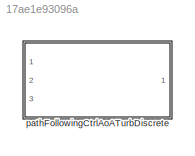
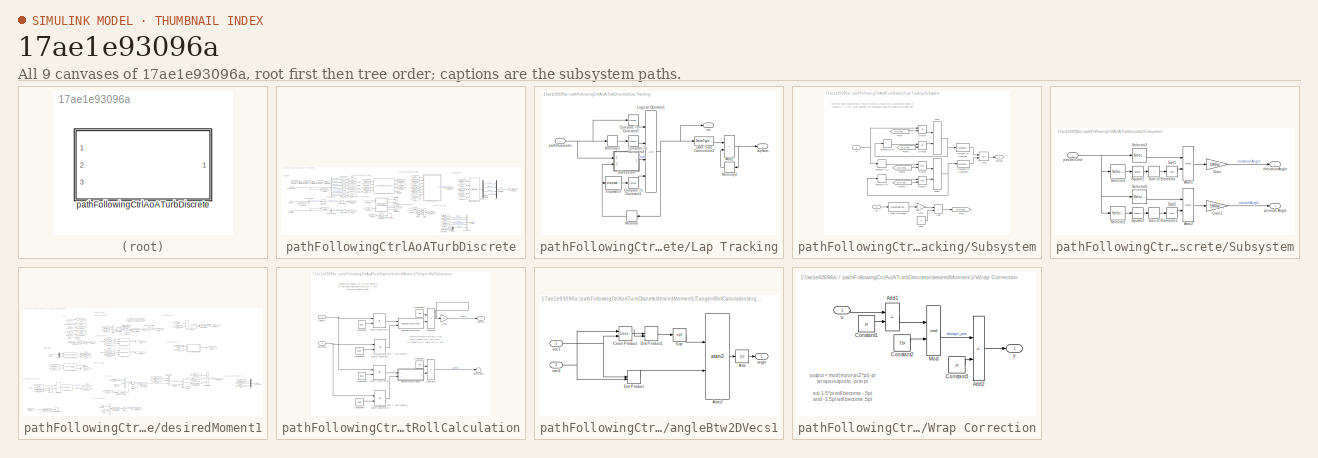
[diagram: thumbnail index - all 9 canvases of the model, root first then tree order]
MODEL slx_17ae1e93096a
KIND library
CONFIG AbsTol = auto
CONFIG EnableMultiTasking = off
CONFIG FixedStep = auto
CONFIG MaxStep = auto
CONFIG MinStep = auto
CONFIG RelTol = 1e-3
CONFIG SampleTimeConstraint = Unconstrained
CONFIG Solver = VariableStepAuto
CONFIG SolverName = VariableStepAuto
CONFIG StartTime = 0.0
CONFIG StopTime = 10.0
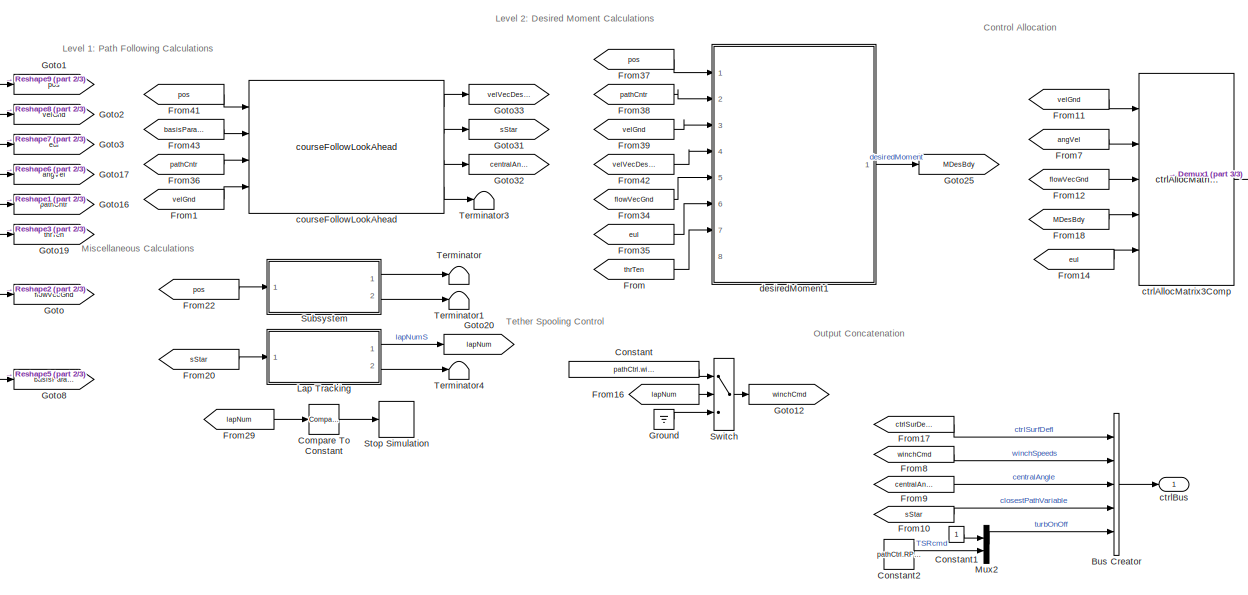
[diagram: pathFollowingCtrlAoATurbDiscrete - part 1/3, center side, full height]
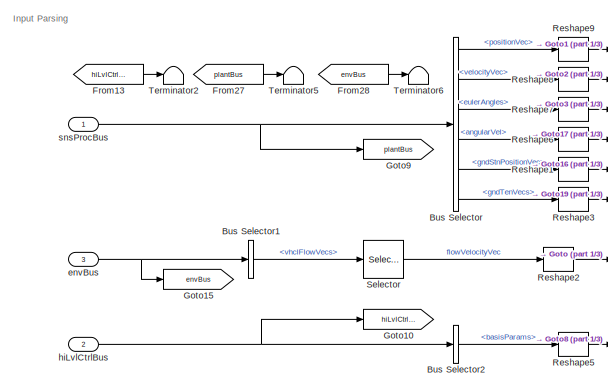
[diagram: pathFollowingCtrlAoATurbDiscrete - part 2/3, middle left region]
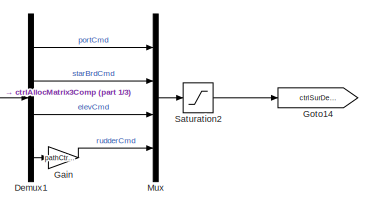
[diagram: pathFollowingCtrlAoATurbDiscrete - part 3/3, middle right region]
BLOCK [SubSystem] pathFollowingCtrlAoATurbDiscrete
  InitFcn = % initializeBussesFromBlock(gcb)
  LoadFcn = initializeBussesFromBlock(gcb)
  MinAlgLoopOccurrences = on
  Ports = [3, 1]
  RequestExecContextInheritance = off
  StartFcn = % initializeBussesFromBlock(gcb)
  VariantControl = strcmpi(FLIGHTCONTROLLER,'pathFollowingControllerManta')
BLOCK [BusCreator] pathFollowingCtrlAoATurbDiscrete/Bus Creator
  DisplayOption = bar
  InheritFromInputs = on
  Inputs = 5
  Ports = [5, 1]
BLOCK [BusSelector] pathFollowingCtrlAoATurbDiscrete/Bus Selector
  OutputSignals = positionVec,velocityVec,eulerAngles,angularVel,gndStnPositionVec,gndTenVecs
  Ports = [1, 6]
BLOCK [BusSelector] pathFollowingCtrlAoATurbDiscrete/Bus Selector1
  OutputSignals = vhclFlowVecs
  Ports = [1, 1]
BLOCK [BusSelector] pathFollowingCtrlAoATurbDiscrete/Bus Selector2
  OutputSignals = basisParams
  Ports = [1, 1]
BLOCK [Reference] pathFollowingCtrlAoATurbDiscrete/Compare To Constant  REF=simulink/Logic and Bit
Operations/Compare
To Constant
  Commented = on
  Ports = [1, 1]
  SourceBlock = simulink/Logic and Bit\nOperations/Compare\nTo Constant
  SourceProductBaseCode = SL
  SourceType = Compare To Constant
BLOCK [Constant] pathFollowingCtrlAoATurbDiscrete/Constant
  Value = pathCtrl.winchSpeedIn.Value
BLOCK [Constant] pathFollowingCtrlAoATurbDiscrete/Constant1
BLOCK [Constant] pathFollowingCtrlAoATurbDiscrete/Constant2
  Value = pathCtrl.RPMConst.Value
BLOCK [Demux] pathFollowingCtrlAoATurbDiscrete/Demux1
  Ports = [1, 4]
BLOCK [From] pathFollowingCtrlAoATurbDiscrete/From
  GotoTag = thrTen
BLOCK [From] pathFollowingCtrlAoATurbDiscrete/From1
  GotoTag = velGnd
BLOCK [From] pathFollowingCtrlAoATurbDiscrete/From10
  GotoTag = sStar
BLOCK [From] pathFollowingCtrlAoATurbDiscrete/From11
  GotoTag = velGnd
BLOCK [From] pathFollowingCtrlAoATurbDiscrete/From12
  GotoTag = flowVecGnd
BLOCK [From] pathFollowingCtrlAoATurbDiscrete/From13
  GotoTag = hiLvlCtrlBus
BLOCK [From] pathFollowingCtrlAoATurbDiscrete/From14
  GotoTag = eul
BLOCK [From] pathFollowingCtrlAoATurbDiscrete/From16
  GotoTag = lapNum
BLOCK [From] pathFollowingCtrlAoATurbDiscrete/From17
  GotoTag = ctrlSurDefl
BLOCK [From] pathFollowingCtrlAoATurbDiscrete/From18
  GotoTag = MDesBdy
BLOCK [From] pathFollowingCtrlAoATurbDiscrete/From20
  GotoTag = sStar
BLOCK [From] pathFollowingCtrlAoATurbDiscrete/From22
  GotoTag = pos
BLOCK [From] pathFollowingCtrlAoATurbDiscrete/From27
  GotoTag = plantBus
BLOCK [From] pathFollowingCtrlAoATurbDiscrete/From28
  GotoTag = envBus
BLOCK [From] pathFollowingCtrlAoATurbDiscrete/From29
  Commented = on
  GotoTag = lapNum
BLOCK [From] pathFollowingCtrlAoATurbDiscrete/From34
  GotoTag = flowVecGnd
BLOCK [From] pathFollowingCtrlAoATurbDiscrete/From35
  GotoTag = eul
BLOCK [From] pathFollowingCtrlAoATurbDiscrete/From36
  GotoTag = pathCntr
BLOCK [From] pathFollowingCtrlAoATurbDiscrete/From37
  GotoTag = pos
BLOCK [From] pathFollowingCtrlAoATurbDiscrete/From38
  GotoTag = pathCntr
BLOCK [From] pathFollowingCtrlAoATurbDiscrete/From39
  GotoTag = velGnd
BLOCK [From] pathFollowingCtrlAoATurbDiscrete/From41
  GotoTag = pos
BLOCK [From] pathFollowingCtrlAoATurbDiscrete/From42
  GotoTag = velVecDesGnd
BLOCK [From] pathFollowingCtrlAoATurbDiscrete/From43
  GotoTag = basisParams
BLOCK [From] pathFollowingCtrlAoATurbDiscrete/From7
  GotoTag = angVel
BLOCK [From] pathFollowingCtrlAoATurbDiscrete/From8
  GotoTag = winchCmd
BLOCK [From] pathFollowingCtrlAoATurbDiscrete/From9
  GotoTag = centralAngle
BLOCK [Gain] pathFollowingCtrlAoATurbDiscrete/Gain
  Gain = pathCtrl.rudderGain.Value
BLOCK [Goto] pathFollowingCtrlAoATurbDiscrete/Goto
  GotoTag = flowVecGnd
BLOCK [Goto] pathFollowingCtrlAoATurbDiscrete/Goto1
  GotoTag = pos
BLOCK [Goto] pathFollowingCtrlAoATurbDiscrete/Goto10
  GotoTag = hiLvlCtrlBus
BLOCK [Goto] pathFollowingCtrlAoATurbDiscrete/Goto12
  GotoTag = winchCmd
BLOCK [Goto] pathFollowingCtrlAoATurbDiscrete/Goto14
  GotoTag = ctrlSurDefl
BLOCK [Goto] pathFollowingCtrlAoATurbDiscrete/Goto15
  GotoTag = envBus
BLOCK [Goto] pathFollowingCtrlAoATurbDiscrete/Goto16
  GotoTag = pathCntr
BLOCK [Goto] pathFollowingCtrlAoATurbDiscrete/Goto17
  GotoTag = angVel
BLOCK [Goto] pathFollowingCtrlAoATurbDiscrete/Goto19
  GotoTag = thrTen
BLOCK [Goto] pathFollowingCtrlAoATurbDiscrete/Goto2
  GotoTag = velGnd
BLOCK [Goto] pathFollowingCtrlAoATurbDiscrete/Goto20
  GotoTag = lapNum
BLOCK [Goto] pathFollowingCtrlAoATurbDiscrete/Goto25
  GotoTag = MDesBdy
BLOCK [Goto] pathFollowingCtrlAoATurbDiscrete/Goto3
  GotoTag = eul
BLOCK [Goto] pathFollowingCtrlAoATurbDiscrete/Goto31
  GotoTag = sStar
BLOCK [Goto] pathFollowingCtrlAoATurbDiscrete/Goto32
  GotoTag = centralAngle
BLOCK [Goto] pathFollowingCtrlAoATurbDiscrete/Goto33
  GotoTag = velVecDesGnd
BLOCK [Goto] pathFollowingCtrlAoATurbDiscrete/Goto8
  GotoTag = basisParams
BLOCK [Goto] pathFollowingCtrlAoATurbDiscrete/Goto9
  GotoTag = plantBus
BLOCK [Ground] pathFollowingCtrlAoATurbDiscrete/Ground
BLOCK [SubSystem] pathFollowingCtrlAoATurbDiscrete/Lap Tracking
  Ports = [1, 2]
  RequestExecContextInheritance = off
BLOCK [Sum] pathFollowingCtrlAoATurbDiscrete/Lap Tracking/Add2
  IconShape = rectangular
  Ports = [2, 1]
BLOCK [Reference] pathFollowingCtrlAoATurbDiscrete/Lap Tracking/Compare To Constant1  REF=simulink/Logic and Bit
Operations/Compare
To Constant
  Ports = [1, 1]
  SourceBlock = simulink/Logic and Bit\nOperations/Compare\nTo Constant
  SourceProductBaseCode = SL
  SourceType = Compare To Constant
BLOCK [Reference] pathFollowingCtrlAoATurbDiscrete/Lap Tracking/Compare To Constant3  REF=simulink/Logic and Bit
Operations/Compare
To Constant
  Ports = [1, 1]
  SourceBlock = simulink/Logic and Bit\nOperations/Compare\nTo Constant
  SourceProductBaseCode = SL
  SourceType = Compare To Constant
BLOCK [Reference] pathFollowingCtrlAoATurbDiscrete/Lap Tracking/Compare To Constant4  REF=simulink/Logic and Bit
Operations/Compare
To Constant
  Ports = [1, 1]
  SourceBlock = simulink/Logic and Bit\nOperations/Compare\nTo Constant
  SourceProductBaseCode = SL
  SourceType = Compare To Constant
BLOCK [DataTypeConversion] pathFollowingCtrlAoATurbDiscrete/Lap Tracking/Data Type Conversion2
  OutDataTypeStr = double
  RndMeth = Floor
  SaturateOnIntegerOverflow = off
BLOCK [Logic] pathFollowingCtrlAoATurbDiscrete/Lap Tracking/Logical Operator1
  AllPortsSameDT = off
  Inputs = 4
  OutDataTypeStr = boolean
  Ports = [4, 1]
BLOCK [Memory] pathFollowingCtrlAoATurbDiscrete/Lap Tracking/Memory
  InitialCondition = false
BLOCK [Memory] pathFollowingCtrlAoATurbDiscrete/Lap Tracking/Memory3
BLOCK [Memory] pathFollowingCtrlAoATurbDiscrete/Lap Tracking/Memory4
BLOCK [SubSystem] pathFollowingCtrlAoATurbDiscrete/Lap Tracking/Subsystem
  Ports = [2, 1]
  RequestExecContextInheritance = off
BLOCK [Logic] pathFollowingCtrlAoATurbDiscrete/Lap Tracking/Subsystem/AND
  AllPortsSameDT = off
  OutDataTypeStr = boolean
  Ports = [2, 1]
BLOCK [Sum] pathFollowingCtrlAoATurbDiscrete/Lap Tracking/Subsystem/Add
  IconShape = rectangular
  Ports = [2, 1]
BLOCK [DataTypeConversion] pathFollowingCtrlAoATurbDiscrete/Lap Tracking/Subsystem/Cast To Double
  OutDataTypeStr = double
  RndMeth = Floor
  SaturateOnIntegerOverflow = off
BLOCK [Reference] pathFollowingCtrlAoATurbDiscrete/Lap Tracking/Subsystem/Compare To Constant  REF=simulink/Logic and Bit
Operations/Compare
To Constant
  Ports = [1, 1]
  SourceBlock = simulink/Logic and Bit\nOperations/Compare\nTo Constant
  SourceProductBaseCode = SL
  SourceType = Compare To Constant
BLOCK [Reference] pathFollowingCtrlAoATurbDiscrete/Lap Tracking/Subsystem/Compare To Constant1  REF=simulink/Logic and Bit
Operations/Compare
To Constant
  Ports = [1, 1]
  SourceBlock = simulink/Logic and Bit\nOperations/Compare\nTo Constant
  SourceProductBaseCode = SL
  SourceType = Compare To Constant
BLOCK [Product] pathFollowingCtrlAoATurbDiscrete/Lap Tracking/Subsystem/Divide
  Inputs = **
  Ports = [2, 1]
BLOCK [Product] pathFollowingCtrlAoATurbDiscrete/Lap Tracking/Subsystem/Divide1
  Inputs = **
  Ports = [2, 1]
BLOCK [From] pathFollowingCtrlAoATurbDiscrete/Lap Tracking/Subsystem/From
  GotoTag = zeroIfReset
BLOCK [From] pathFollowingCtrlAoATurbDiscrete/Lap Tracking/Subsystem/From1
  GotoTag = zeroIfReset
BLOCK [From] pathFollowingCtrlAoATurbDiscrete/Lap Tracking/Subsystem/From2
  GotoTag = zeroIfReset
BLOCK [From] pathFollowingCtrlAoATurbDiscrete/Lap Tracking/Subsystem/From3
  GotoTag = zeroIfReset
BLOCK [Gain] pathFollowingCtrlAoATurbDiscrete/Lap Tracking/Subsystem/Gain
  Gain = -1
BLOCK [Goto] pathFollowingCtrlAoATurbDiscrete/Lap Tracking/Subsystem/Goto
  GotoTag = zeroIfReset
BLOCK [MinMax] pathFollowingCtrlAoATurbDiscrete/Lap Tracking/Subsystem/Max
  Function = max
  Inputs = 2
  Ports = [2, 1]
BLOCK [MinMax] pathFollowingCtrlAoATurbDiscrete/Lap Tracking/Subsystem/Max1
  Inputs = 2
  Ports = [2, 1]
BLOCK [Constant] pathFollowingCtrlAoATurbDiscrete/Lap Tracking/Subsystem/One
  OutDataTypeStr = Inherit: Inherit via back propagation
BLOCK [Math] pathFollowingCtrlAoATurbDiscrete/Lap Tracking/Subsystem/Power
  Operator = pow
  Ports = [2, 1]
BLOCK [Math] pathFollowingCtrlAoATurbDiscrete/Lap Tracking/Subsystem/Power1
  Operator = pow
  Ports = [2, 1]
BLOCK [Inport] pathFollowingCtrlAoATurbDiscrete/Lap Tracking/Subsystem/S
BLOCK [Memory] pathFollowingCtrlAoATurbDiscrete/Lap Tracking/Subsystem/memoryIC1
  InitialCondition = 1
BLOCK [Memory] pathFollowingCtrlAoATurbDiscrete/Lap Tracking/Subsystem/memoryIC=0
BLOCK [Memory] pathFollowingCtrlAoATurbDiscrete/Lap Tracking/Subsystem/memoryIC=1
  InitialCondition = 1
BLOCK [Outport] pathFollowingCtrlAoATurbDiscrete/Lap Tracking/Subsystem/realLap
BLOCK [Inport] pathFollowingCtrlAoATurbDiscrete/Lap Tracking/Subsystem/rst
  Port = 2
BLOCK [Outport] pathFollowingCtrlAoATurbDiscrete/Lap Tracking/lapNum
  VectorParamsAs1DForOutWhenUnconnected = off
BLOCK [Inport] pathFollowingCtrlAoATurbDiscrete/Lap Tracking/pathParameter
BLOCK [Outport] pathFollowingCtrlAoATurbDiscrete/Lap Tracking/rst
  Port = 2
  VectorParamsAs1DForOutWhenUnconnected = off
BLOCK [Reference] pathFollowingCtrlAoATurbDiscrete/Lap Tracking/stopwatch  REF=stopwatch_ul/stopwatch  (lib defined in slx_5231e8830116, slx_6b86a6863970)
  Ports = [1, 1]
  SourceBlock = stopwatch_ul/stopwatch
  SourceType = SubSystem
BLOCK [Mux] pathFollowingCtrlAoATurbDiscrete/Mux
  DisplayOption = bar
  Ports = [4, 1]
BLOCK [Mux] pathFollowingCtrlAoATurbDiscrete/Mux2
  DisplayOption = bar
  Inputs = 2
  Ports = [2, 1]
BLOCK [Reshape] pathFollowingCtrlAoATurbDiscrete/Reshape1
  OutputDimensionality = Column vector (2-D)
  Ports = [1, 1]
BLOCK [Reshape] pathFollowingCtrlAoATurbDiscrete/Reshape2
  OutputDimensionality = Column vector (2-D)
  Ports = [1, 1]
BLOCK [Reshape] pathFollowingCtrlAoATurbDiscrete/Reshape3
  OutputDimensionality = Column vector (2-D)
  Ports = [1, 1]
BLOCK [Reshape] pathFollowingCtrlAoATurbDiscrete/Reshape5
  OutputDimensionality = Column vector (2-D)
  Ports = [1, 1]
BLOCK [Reshape] pathFollowingCtrlAoATurbDiscrete/Reshape6
  OutputDimensionality = Column vector (2-D)
  Ports = [1, 1]
BLOCK [Reshape] pathFollowingCtrlAoATurbDiscrete/Reshape7
  OutputDimensionality = Column vector (2-D)
  Ports = [1, 1]
BLOCK [Reshape] pathFollowingCtrlAoATurbDiscrete/Reshape8
  OutputDimensionality = Column vector (2-D)
  Ports = [1, 1]
BLOCK [Reshape] pathFollowingCtrlAoATurbDiscrete/Reshape9
  OutputDimensionality = Column vector (2-D)
  Ports = [1, 1]
BLOCK [Saturate] pathFollowingCtrlAoATurbDiscrete/Saturation2
  LowerLimit = pathCtrl.controlSigMax.lowerLimit.Value
  UpperLimit = pathCtrl.controlSigMax.upperLimit.Value
BLOCK [Selector] pathFollowingCtrlAoATurbDiscrete/Selector
  IndexOptions = Select all,Index vector (dialog)
  Indices = [1 3],5
  InputPortWidth = 3
  NumberOfDimensions = 2
  OutputSizes = 1,1
  Ports = [1, 1]
BLOCK [Stop] pathFollowingCtrlAoATurbDiscrete/Stop Simulation
  Commented = on
BLOCK [SubSystem] pathFollowingCtrlAoATurbDiscrete/Subsystem
  Commented = on
  Ports = [1, 2]
  RequestExecContextInheritance = off
BLOCK [Trigonometry] pathFollowingCtrlAoATurbDiscrete/Subsystem/Atan1
  Operator = atan2
  Ports = [2, 1]
BLOCK [Trigonometry] pathFollowingCtrlAoATurbDiscrete/Subsystem/Atan2
  Operator = atan2
  Ports = [2, 1]
BLOCK [Gain] pathFollowingCtrlAoATurbDiscrete/Subsystem/Gain
  Gain = 180/pi
BLOCK [Gain] pathFollowingCtrlAoATurbDiscrete/Subsystem/Gain1
  Gain = 180/pi
BLOCK [Selector] pathFollowingCtrlAoATurbDiscrete/Subsystem/Selector1
  IndexOptions = Index vector (dialog)
  Indices = 1
  InputPortWidth = 3
  OutputSizes = 1
  Ports = [1, 1]
BLOCK [Selector] pathFollowingCtrlAoATurbDiscrete/Subsystem/Selector2
  IndexOptions = Index vector (dialog)
  Indices = [1 2]
  InputPortWidth = 3
  OutputSizes = 1
  Ports = [1, 1]
BLOCK [Selector] pathFollowingCtrlAoATurbDiscrete/Subsystem/Selector3
  IndexOptions = Index vector (dialog)
  Indices = 3
  InputPortWidth = 3
  OutputSizes = 1
  Ports = [1, 1]
BLOCK [Selector] pathFollowingCtrlAoATurbDiscrete/Subsystem/Selector4
  IndexOptions = Index vector (dialog)
  Indices = 2
  InputPortWidth = 3
  OutputSizes = 1
  Ports = [1, 1]
BLOCK [Sqrt] pathFollowingCtrlAoATurbDiscrete/Subsystem/Sqrt1
BLOCK [Sqrt] pathFollowingCtrlAoATurbDiscrete/Subsystem/Sqrt2
BLOCK [Math] pathFollowingCtrlAoATurbDiscrete/Subsystem/Square1
  Operator = square
  Ports = [1, 1]
  SignedPower = on
BLOCK [Math] pathFollowingCtrlAoATurbDiscrete/Subsystem/Square2
  Operator = square
  Ports = [1, 1]
  SignedPower = on
BLOCK [Sum] pathFollowingCtrlAoATurbDiscrete/Subsystem/Sum of Elements
  IconShape = rectangular
  Inputs = +
  Ports = [1, 1]
BLOCK [Sum] pathFollowingCtrlAoATurbDiscrete/Subsystem/Sum of Elements1
  IconShape = rectangular
  Inputs = +
  Ports = [1, 1]
BLOCK [Outport] pathFollowingCtrlAoATurbDiscrete/Subsystem/azimuth Angle
  Port = 2
BLOCK [Outport] pathFollowingCtrlAoATurbDiscrete/Subsystem/elevationAngle
BLOCK [Inport] pathFollowingCtrlAoATurbDiscrete/Subsystem/posVecGnd
BLOCK [Switch] pathFollowingCtrlAoATurbDiscrete/Switch
  InputSameDT = off
  SaturateOnIntegerOverflow = off
  Threshold = fltCtrl.firstSpoolLap.Value
BLOCK [Terminator] pathFollowingCtrlAoATurbDiscrete/Terminator
BLOCK [Terminator] pathFollowingCtrlAoATurbDiscrete/Terminator1
BLOCK [Terminator] pathFollowingCtrlAoATurbDiscrete/Terminator2
BLOCK [Terminator] pathFollowingCtrlAoATurbDiscrete/Terminator3
BLOCK [Terminator] pathFollowingCtrlAoATurbDiscrete/Terminator4
BLOCK [Terminator] pathFollowingCtrlAoATurbDiscrete/Terminator5
BLOCK [Terminator] pathFollowingCtrlAoATurbDiscrete/Terminator6
BLOCK [Reference] pathFollowingCtrlAoATurbDiscrete/courseFollowLookAhead  REF=courseFollowLookAhead_cl/courseFollowLookAhead
  Ports = [4, 4]
  SourceBlock = courseFollowLookAhead_cl/courseFollowLookAhead
  SourceType = SubSystem
BLOCK [Reference] pathFollowingCtrlAoATurbDiscrete/ctrlAllocMatrix3Comp  REF=ctrlAllocMatrix3Comp_cl/ctrlAllocMatrix3Comp
  Ports = [5, 1]
  SourceBlock = ctrlAllocMatrix3Comp_cl/ctrlAllocMatrix3Comp
BLOCK [Outport] pathFollowingCtrlAoATurbDiscrete/ctrlBus
  OutDataTypeStr = Bus: fltCtrlBus
  VectorParamsAs1DForOutWhenUnconnected = off
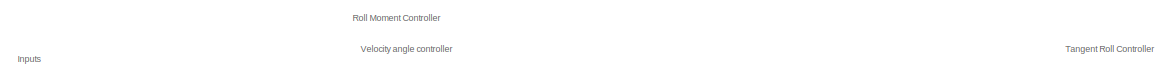
[diagram: pathFollowingCtrlAoATurbDiscrete/desiredMoment1 - part 1/5, top center region]
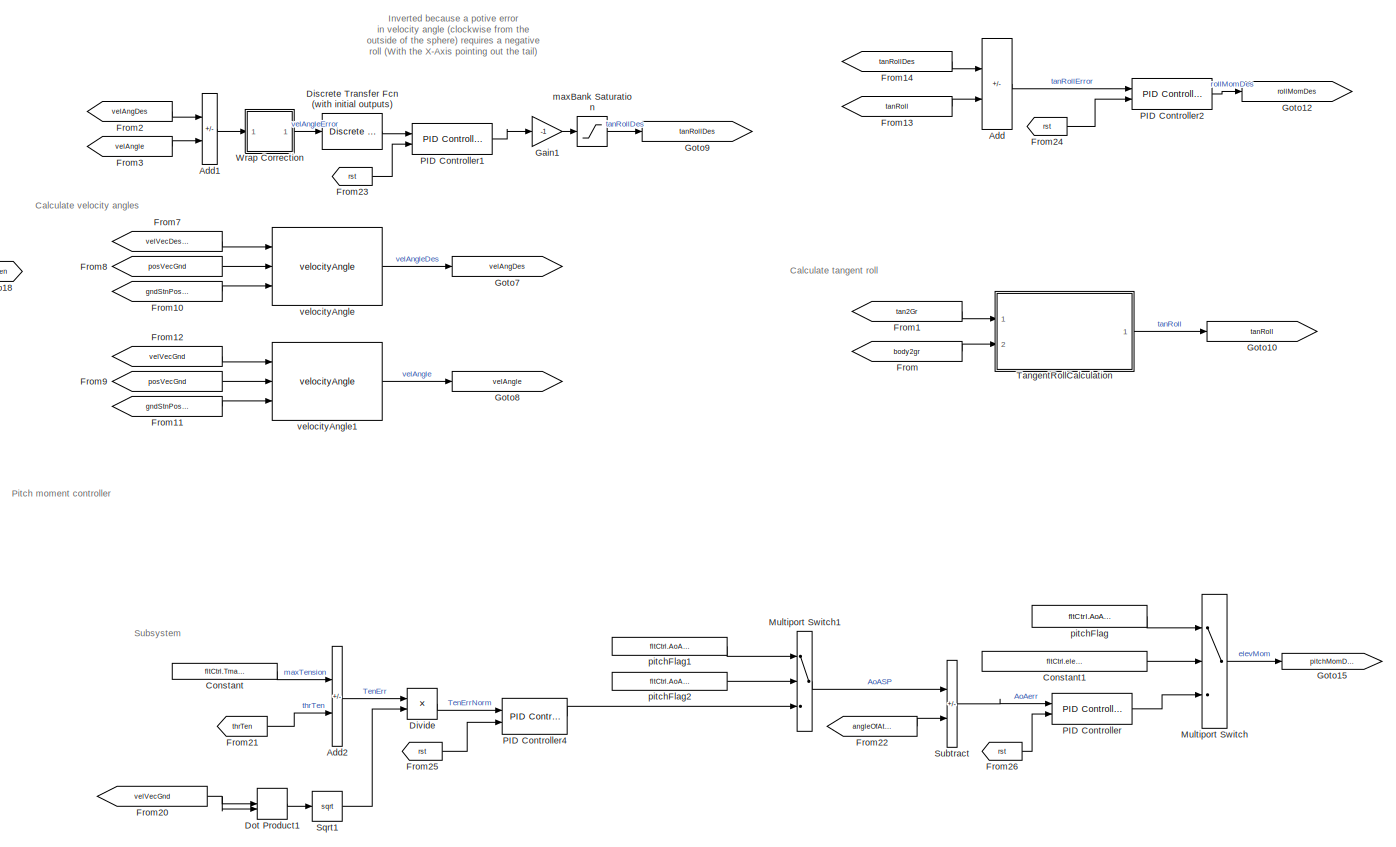
[diagram: pathFollowingCtrlAoATurbDiscrete/desiredMoment1 - part 2/5, center side, full height]
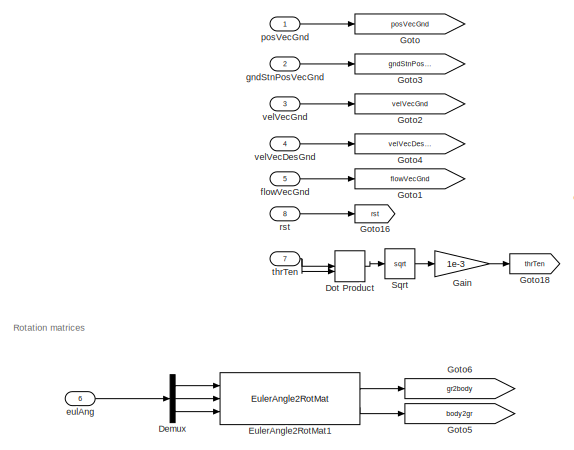
[diagram: pathFollowingCtrlAoATurbDiscrete/desiredMoment1 - part 3/5, top left region]
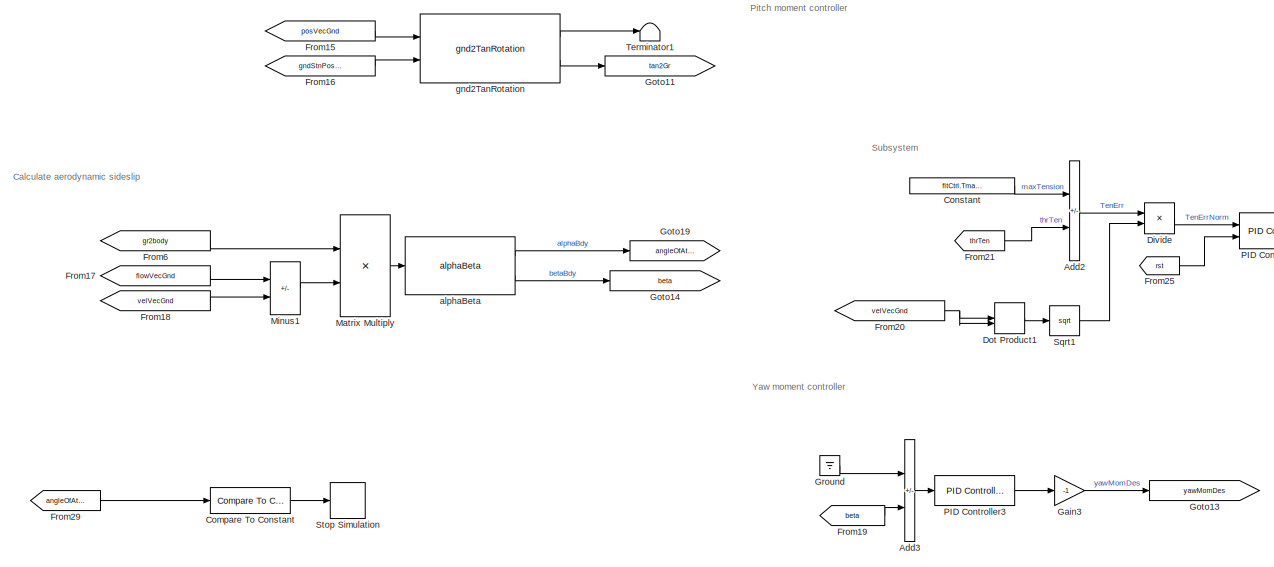
[diagram: pathFollowingCtrlAoATurbDiscrete/desiredMoment1 - part 4/5, bottom left region]
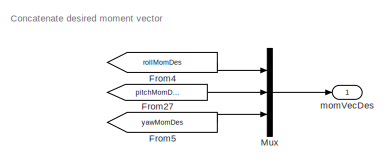
[diagram: pathFollowingCtrlAoATurbDiscrete/desiredMoment1 - part 5/5, bottom right region]
BLOCK [SubSystem] pathFollowingCtrlAoATurbDiscrete/desiredMoment1
  Ports = [8, 1]
  RequestExecContextInheritance = off
BLOCK [Sum] pathFollowingCtrlAoATurbDiscrete/desiredMoment1/Add
  IconShape = rectangular
  Inputs = +-
  Ports = [2, 1]
BLOCK [Sum] pathFollowingCtrlAoATurbDiscrete/desiredMoment1/Add1
  IconShape = rectangular
  Inputs = +-
  Ports = [2, 1]
BLOCK [Sum] pathFollowingCtrlAoATurbDiscrete/desiredMoment1/Add2
  IconShape = rectangular
  Inputs = +-
  Ports = [2, 1]
BLOCK [Sum] pathFollowingCtrlAoATurbDiscrete/desiredMoment1/Add3
  IconShape = rectangular
  Inputs = +-
  Ports = [2, 1]
BLOCK [Reference] pathFollowingCtrlAoATurbDiscrete/desiredMoment1/Compare To Constant  REF=simulink/Logic and Bit
Operations/Compare
To Constant
  Commented = on
  Ports = [1, 1]
  SourceBlock = simulink/Logic and Bit\nOperations/Compare\nTo Constant
  SourceProductBaseCode = SL
  SourceType = Compare To Constant
BLOCK [Constant] pathFollowingCtrlAoATurbDiscrete/desiredMoment1/Constant
  Value = fltCtrl.Tmax.Value
BLOCK [Constant] pathFollowingCtrlAoATurbDiscrete/desiredMoment1/Constant1
  Value = fltCtrl.elevatorConst.Value
BLOCK [Demux] pathFollowingCtrlAoATurbDiscrete/desiredMoment1/Demux
  Outputs = 3
  Ports = [1, 3]
BLOCK [Reference] pathFollowingCtrlAoATurbDiscrete/desiredMoment1/Discrete Transfer Fcn (with initial outputs)  REF=simulink_extras/Additional
Discrete/Discrete
Transfer Fcn
(with initial outputs)
  Ports = [1, 1]
  SourceBlock = simulink_extras/Additional\nDiscrete/Discrete\nTransfer Fcn\n(with initial outputs)
  SourceProductBaseCode = SL
  SourceType = Discrete Transfer Function with Initial Outputs
BLOCK [Product] pathFollowingCtrlAoATurbDiscrete/desiredMoment1/Divide
  Inputs = */
  Ports = [2, 1]
BLOCK [DotProduct] pathFollowingCtrlAoATurbDiscrete/desiredMoment1/Dot Product
  OutDataTypeStr = Inherit: Inherit via internal rule
BLOCK [DotProduct] pathFollowingCtrlAoATurbDiscrete/desiredMoment1/Dot Product1
  OutDataTypeStr = Inherit: Inherit via internal rule
BLOCK [Reference] pathFollowingCtrlAoATurbDiscrete/desiredMoment1/EulerAngle2RotMat1  REF=eulAng2RotMat_ul/EulerAngle2RotMat
  Ports = [3, 2]
  SourceBlock = eulAng2RotMat_ul/EulerAngle2RotMat
  SourceType = SubSystem
BLOCK [From] pathFollowingCtrlAoATurbDiscrete/desiredMoment1/From
  GotoTag = body2gr
BLOCK [From] pathFollowingCtrlAoATurbDiscrete/desiredMoment1/From1
  GotoTag = tan2Gr
BLOCK [From] pathFollowingCtrlAoATurbDiscrete/desiredMoment1/From10
  GotoTag = gndStnPosVecGnd
BLOCK [From] pathFollowingCtrlAoATurbDiscrete/desiredMoment1/From11
  GotoTag = gndStnPosVecGnd
BLOCK [From] pathFollowingCtrlAoATurbDiscrete/desiredMoment1/From12
  GotoTag = velVecGnd
BLOCK [From] pathFollowingCtrlAoATurbDiscrete/desiredMoment1/From13
  GotoTag = tanRoll
BLOCK [From] pathFollowingCtrlAoATurbDiscrete/desiredMoment1/From14
  GotoTag = tanRollDes
BLOCK [From] pathFollowingCtrlAoATurbDiscrete/desiredMoment1/From15
  GotoTag = posVecGnd
BLOCK [From] pathFollowingCtrlAoATurbDiscrete/desiredMoment1/From16
  GotoTag = gndStnPosVecGnd
BLOCK [From] pathFollowingCtrlAoATurbDiscrete/desiredMoment1/From17
  GotoTag = flowVecGnd
BLOCK [From] pathFollowingCtrlAoATurbDiscrete/desiredMoment1/From18
  GotoTag = velVecGnd
BLOCK [From] pathFollowingCtrlAoATurbDiscrete/desiredMoment1/From19
  GotoTag = beta
BLOCK [From] pathFollowingCtrlAoATurbDiscrete/desiredMoment1/From2
  GotoTag = velAngDes
BLOCK [From] pathFollowingCtrlAoATurbDiscrete/desiredMoment1/From20
  GotoTag = velVecGnd
BLOCK [From] pathFollowingCtrlAoATurbDiscrete/desiredMoment1/From21
  GotoTag = thrTen
BLOCK [From] pathFollowingCtrlAoATurbDiscrete/desiredMoment1/From22
  GotoTag = angleOfAttack
BLOCK [From] pathFollowingCtrlAoATurbDiscrete/desiredMoment1/From23
  GotoTag = rst
BLOCK [From] pathFollowingCtrlAoATurbDiscrete/desiredMoment1/From24
  GotoTag = rst
BLOCK [From] pathFollowingCtrlAoATurbDiscrete/desiredMoment1/From25
  GotoTag = rst
BLOCK [From] pathFollowingCtrlAoATurbDiscrete/desiredMoment1/From26
  GotoTag = rst
BLOCK [From] pathFollowingCtrlAoATurbDiscrete/desiredMoment1/From27
  GotoTag = pitchMomDes
BLOCK [From] pathFollowingCtrlAoATurbDiscrete/desiredMoment1/From29
  Commented = on
  GotoTag = angleOfAttack
BLOCK [From] pathFollowingCtrlAoATurbDiscrete/desiredMoment1/From3
  GotoTag = velAngle
BLOCK [From] pathFollowingCtrlAoATurbDiscrete/desiredMoment1/From4
  GotoTag = rollMomDes
BLOCK [From] pathFollowingCtrlAoATurbDiscrete/desiredMoment1/From5
  GotoTag = yawMomDes
BLOCK [From] pathFollowingCtrlAoATurbDiscrete/desiredMoment1/From6
  GotoTag = gr2body
BLOCK [From] pathFollowingCtrlAoATurbDiscrete/desiredMoment1/From7
  GotoTag = velVecDesGnd
BLOCK [From] pathFollowingCtrlAoATurbDiscrete/desiredMoment1/From8
  GotoTag = posVecGnd
BLOCK [From] pathFollowingCtrlAoATurbDiscrete/desiredMoment1/From9
  GotoTag = posVecGnd
BLOCK [Gain] pathFollowingCtrlAoATurbDiscrete/desiredMoment1/Gain
  Gain = 1e-3
BLOCK [Gain] pathFollowingCtrlAoATurbDiscrete/desiredMoment1/Gain1
  Gain = -1
BLOCK [Gain] pathFollowingCtrlAoATurbDiscrete/desiredMoment1/Gain3
  Gain = -1
BLOCK [Goto] pathFollowingCtrlAoATurbDiscrete/desiredMoment1/Goto
  GotoTag = posVecGnd
BLOCK [Goto] pathFollowingCtrlAoATurbDiscrete/desiredMoment1/Goto1
  GotoTag = flowVecGnd
BLOCK [Goto] pathFollowingCtrlAoATurbDiscrete/desiredMoment1/Goto10
  GotoTag = tanRoll
BLOCK [Goto] pathFollowingCtrlAoATurbDiscrete/desiredMoment1/Goto11
  GotoTag = tan2Gr
BLOCK [Goto] pathFollowingCtrlAoATurbDiscrete/desiredMoment1/Goto12
  GotoTag = rollMomDes
BLOCK [Goto] pathFollowingCtrlAoATurbDiscrete/desiredMoment1/Goto13
  GotoTag = yawMomDes
BLOCK [Goto] pathFollowingCtrlAoATurbDiscrete/desiredMoment1/Goto14
  GotoTag = beta
BLOCK [Goto] pathFollowingCtrlAoATurbDiscrete/desiredMoment1/Goto15
  GotoTag = pitchMomDes
BLOCK [Goto] pathFollowingCtrlAoATurbDiscrete/desiredMoment1/Goto16
  GotoTag = rst
BLOCK [Goto] pathFollowingCtrlAoATurbDiscrete/desiredMoment1/Goto18
  GotoTag = thrTen
BLOCK [Goto] pathFollowingCtrlAoATurbDiscrete/desiredMoment1/Goto19
  GotoTag = angleOfAttack
BLOCK [Goto] pathFollowingCtrlAoATurbDiscrete/desiredMoment1/Goto2
  GotoTag = velVecGnd
BLOCK [Goto] pathFollowingCtrlAoATurbDiscrete/desiredMoment1/Goto3
  GotoTag = gndStnPosVecGnd
BLOCK [Goto] pathFollowingCtrlAoATurbDiscrete/desiredMoment1/Goto4
  GotoTag = velVecDesGnd
BLOCK [Goto] pathFollowingCtrlAoATurbDiscrete/desiredMoment1/Goto5
  GotoTag = body2gr
BLOCK [Goto] pathFollowingCtrlAoATurbDiscrete/desiredMoment1/Goto6
  GotoTag = gr2body
BLOCK [Goto] pathFollowingCtrlAoATurbDiscrete/desiredMoment1/Goto7
  GotoTag = velAngDes
BLOCK [Goto] pathFollowingCtrlAoATurbDiscrete/desiredMoment1/Goto8
  GotoTag = velAngle
BLOCK [Goto] pathFollowingCtrlAoATurbDiscrete/desiredMoment1/Goto9
  GotoTag = tanRollDes
BLOCK [Ground] pathFollowingCtrlAoATurbDiscrete/desiredMoment1/Ground
BLOCK [Product] pathFollowingCtrlAoATurbDiscrete/desiredMoment1/Matrix Multiply
  Multiplication = Matrix(*)
  Ports = [2, 1]
BLOCK [Sum] pathFollowingCtrlAoATurbDiscrete/desiredMoment1/Minus1
  IconShape = rectangular
  Inputs = +-
  Ports = [2, 1]
BLOCK [MultiPortSwitch] pathFollowingCtrlAoATurbDiscrete/desiredMoment1/Multiport Switch
  DataPortIndices = {0,1}
  DataPortOrder = Specify indices
  InputSameDT = off
  Inputs = 2
  Ports = [3, 1]
  SaturateOnIntegerOverflow = off
BLOCK [MultiPortSwitch] pathFollowingCtrlAoATurbDiscrete/desiredMoment1/Multiport Switch1
  DataPortIndices = {0,1}
  DataPortOrder = Specify indices
  InputSameDT = off
  Inputs = 2
  Ports = [3, 1]
  SaturateOnIntegerOverflow = off
BLOCK [Mux] pathFollowingCtrlAoATurbDiscrete/desiredMoment1/Mux
  DisplayOption = bar
  Inputs = 3
  Ports = [3, 1]
BLOCK [Reference] pathFollowingCtrlAoATurbDiscrete/desiredMoment1/PID Controller  REF=simulink/Continuous/PID Controller
  Ports = [2, 1]
  SourceBlock = simulink/Continuous/PID Controller
  SourceProductBaseCode = SL
  SourceType = PID 1dof
BLOCK [Reference] pathFollowingCtrlAoATurbDiscrete/desiredMoment1/PID Controller1  REF=simulink/Continuous/PID Controller
  Ports = [2, 1]
  SourceBlock = simulink/Continuous/PID Controller
  SourceProductBaseCode = SL
  SourceType = PID 1dof
BLOCK [Reference] pathFollowingCtrlAoATurbDiscrete/desiredMoment1/PID Controller2  REF=simulink/Continuous/PID Controller
  Ports = [2, 1]
  SourceBlock = simulink/Continuous/PID Controller
  SourceProductBaseCode = SL
  SourceType = PID 1dof
BLOCK [Reference] pathFollowingCtrlAoATurbDiscrete/desiredMoment1/PID Controller3  REF=simulink/Continuous/PID Controller
  Ports = [1, 1]
  SourceBlock = simulink/Continuous/PID Controller
  SourceProductBaseCode = SL
  SourceType = PID 1dof
BLOCK [Reference] pathFollowingCtrlAoATurbDiscrete/desiredMoment1/PID Controller4  REF=simulink/Continuous/PID Controller
  Ports = [2, 1]
  SourceBlock = simulink/Continuous/PID Controller
  SourceProductBaseCode = SL
  SourceType = PID 1dof
BLOCK [Sqrt] pathFollowingCtrlAoATurbDiscrete/desiredMoment1/Sqrt
BLOCK [Sqrt] pathFollowingCtrlAoATurbDiscrete/desiredMoment1/Sqrt1
BLOCK [Stop] pathFollowingCtrlAoATurbDiscrete/desiredMoment1/Stop Simulation
  Commented = on
BLOCK [Sum] pathFollowingCtrlAoATurbDiscrete/desiredMoment1/Subtract
  IconShape = rectangular
  Inputs = +-
  Ports = [2, 1]
BLOCK [SubSystem] pathFollowingCtrlAoATurbDiscrete/desiredMoment1/TangentRollCalculation
  Ports = [2, 1]
  RequestExecContextInheritance = off
BLOCK [Constant] pathFollowingCtrlAoATurbDiscrete/desiredMoment1/TangentRollCalculation/Constant1
  Value = pi/2
BLOCK [Constant] pathFollowingCtrlAoATurbDiscrete/desiredMoment1/TangentRollCalculation/Constant2
  Value = pi/2
BLOCK [Constant] pathFollowingCtrlAoATurbDiscrete/desiredMoment1/TangentRollCalculation/Constant3
  Value = [0 1 0]'
BLOCK [Constant] pathFollowingCtrlAoATurbDiscrete/desiredMoment1/TangentRollCalculation/Constant4
  Value = [0 0 1]'
BLOCK [Constant] pathFollowingCtrlAoATurbDiscrete/desiredMoment1/TangentRollCalculation/Constant5
  Value = [1 0 0]'
BLOCK [Constant] pathFollowingCtrlAoATurbDiscrete/desiredMoment1/TangentRollCalculation/Constant6
  Value = [0 0 1]'
BLOCK [Gain] pathFollowingCtrlAoATurbDiscrete/desiredMoment1/TangentRollCalculation/Gain
  Gain = -1
BLOCK [Product] pathFollowingCtrlAoATurbDiscrete/desiredMoment1/TangentRollCalculation/Matrix Multiply
  Multiplication = Matrix(*)
  Ports = [2, 1]
BLOCK [Product] pathFollowingCtrlAoATurbDiscrete/desiredMoment1/TangentRollCalculation/Matrix Multiply1
  Multiplication = Matrix(*)
  Ports = [2, 1]
BLOCK [Product] pathFollowingCtrlAoATurbDiscrete/desiredMoment1/TangentRollCalculation/Matrix Multiply2
  Multiplication = Matrix(*)
  Ports = [2, 1]
BLOCK [Product] pathFollowingCtrlAoATurbDiscrete/desiredMoment1/TangentRollCalculation/Matrix Multiply3
  Multiplication = Matrix(*)
  Ports = [2, 1]
BLOCK [Sum] pathFollowingCtrlAoATurbDiscrete/desiredMoment1/TangentRollCalculation/Subtract
  IconShape = rectangular
  Inputs = +-
  Ports = [2, 1]
BLOCK [Sum] pathFollowingCtrlAoATurbDiscrete/desiredMoment1/TangentRollCalculation/Subtract1
  IconShape = rectangular
  Inputs = +-
  Ports = [2, 1]
BLOCK [Terminator] pathFollowingCtrlAoATurbDiscrete/desiredMoment1/TangentRollCalculation/Terminator
BLOCK [Reference] pathFollowingCtrlAoATurbDiscrete/desiredMoment1/TangentRollCalculation/angleBtw2DVecs  REF=angleBtw2Vecs_ul/angleBtw2DVecs
  Ports = [2, 1]
  SourceBlock = angleBtw2Vecs_ul/angleBtw2DVecs
  SourceType = SubSystem
BLOCK [SubSystem] pathFollowingCtrlAoATurbDiscrete/desiredMoment1/TangentRollCalculation/angleBtw2DVecs1
  Ports = [2, 1]
  RequestExecContextInheritance = off
BLOCK [Abs] pathFollowingCtrlAoATurbDiscrete/desiredMoment1/TangentRollCalculation/angleBtw2DVecs1/Abs
  SaturateOnIntegerOverflow = off
BLOCK [Trigonometry] pathFollowingCtrlAoATurbDiscrete/desiredMoment1/TangentRollCalculation/angleBtw2DVecs1/Atan2
  Operator = atan2
  Ports = [2, 1]
BLOCK [Reference] pathFollowingCtrlAoATurbDiscrete/desiredMoment1/TangentRollCalculation/angleBtw2DVecs1/Cross Product  REF=vrlib/Utilities/Cross Product
  Ports = [2, 1]
  SourceBlock = vrlib/Utilities/Cross Product
  SourceProductBaseCode = VR
  SourceType = Cross Product
BLOCK [DotProduct] pathFollowingCtrlAoATurbDiscrete/desiredMoment1/TangentRollCalculation/angleBtw2DVecs1/Dot Product
  OutDataTypeStr = Inherit: Inherit via internal rule
BLOCK [DotProduct] pathFollowingCtrlAoATurbDiscrete/desiredMoment1/TangentRollCalculation/angleBtw2DVecs1/Dot Product1
  OutDataTypeStr = Inherit: Inherit via internal rule
BLOCK [Sqrt] pathFollowingCtrlAoATurbDiscrete/desiredMoment1/TangentRollCalculation/angleBtw2DVecs1/Sqrt
BLOCK [Outport] pathFollowingCtrlAoATurbDiscrete/desiredMoment1/TangentRollCalculation/angleBtw2DVecs1/angle
  VectorParamsAs1DForOutWhenUnconnected = off
BLOCK [Inport] pathFollowingCtrlAoATurbDiscrete/desiredMoment1/TangentRollCalculation/angleBtw2DVecs1/vec1
BLOCK [Inport] pathFollowingCtrlAoATurbDiscrete/desiredMoment1/TangentRollCalculation/angleBtw2DVecs1/vec2
  Port = 2
BLOCK [Inport] pathFollowingCtrlAoATurbDiscrete/desiredMoment1/TangentRollCalculation/bdy2Inert
  Port = 2
BLOCK [Inport] pathFollowingCtrlAoATurbDiscrete/desiredMoment1/TangentRollCalculation/tan2Gr
BLOCK [Outport] pathFollowingCtrlAoATurbDiscrete/desiredMoment1/TangentRollCalculation/tanRoll
  VectorParamsAs1DForOutWhenUnconnected = off
BLOCK [Terminator] pathFollowingCtrlAoATurbDiscrete/desiredMoment1/Terminator1
BLOCK [SubSystem] pathFollowingCtrlAoATurbDiscrete/desiredMoment1/Wrap Correction
  Ports = [1, 1]
  RequestExecContextInheritance = off
BLOCK [Sum] pathFollowingCtrlAoATurbDiscrete/desiredMoment1/Wrap Correction/Add1
  IconShape = rectangular
  Inputs = +-
  Ports = [2, 1]
BLOCK [Sum] pathFollowingCtrlAoATurbDiscrete/desiredMoment1/Wrap Correction/Add2
  IconShape = rectangular
  Inputs = +-
  Ports = [2, 1]
BLOCK [Constant] pathFollowingCtrlAoATurbDiscrete/desiredMoment1/Wrap Correction/Constant1
  Value = pi
BLOCK [Constant] pathFollowingCtrlAoATurbDiscrete/desiredMoment1/Wrap Correction/Constant2
  Value = 2*pi
BLOCK [Constant] pathFollowingCtrlAoATurbDiscrete/desiredMoment1/Wrap Correction/Constant3
  Value = pi
BLOCK [Math] pathFollowingCtrlAoATurbDiscrete/desiredMoment1/Wrap Correction/Mod
  Operator = mod
  Ports = [2, 1]
  SignedPower = on
BLOCK [Inport] pathFollowingCtrlAoATurbDiscrete/desiredMoment1/Wrap Correction/u
BLOCK [Outport] pathFollowingCtrlAoATurbDiscrete/desiredMoment1/Wrap Correction/y
  VectorParamsAs1DForOutWhenUnconnected = off
BLOCK [Reference] pathFollowingCtrlAoATurbDiscrete/desiredMoment1/alphaBeta  REF=alphaBeta_ul/alphaBeta
  Ports = [1, 2]
  SourceBlock = alphaBeta_ul/alphaBeta
  SourceType = SubSystem
BLOCK [Inport] pathFollowingCtrlAoATurbDiscrete/desiredMoment1/eulAng
  Port = 6
BLOCK [Inport] pathFollowingCtrlAoATurbDiscrete/desiredMoment1/flowVecGnd
  Port = 5
BLOCK [Reference] pathFollowingCtrlAoATurbDiscrete/desiredMoment1/gnd2TanRotation  REF=gnd2TanRotation_ul/gnd2TanRotation
  Ports = [2, 2]
  SourceBlock = gnd2TanRotation_ul/gnd2TanRotation
  SourceType = SubSystem
BLOCK [Inport] pathFollowingCtrlAoATurbDiscrete/desiredMoment1/gndStnPosVecGnd
  Port = 2
BLOCK [Saturate] pathFollowingCtrlAoATurbDiscrete/desiredMoment1/maxBank Saturation
  LowerLimit = pathCtrl.maxBank.lowerLimit.Value
  UpperLimit = pathCtrl.maxBank.upperLimit.Value
BLOCK [Outport] pathFollowingCtrlAoATurbDiscrete/desiredMoment1/momVecDes
  VectorParamsAs1DForOutWhenUnconnected = off
BLOCK [Constant] pathFollowingCtrlAoATurbDiscrete/desiredMoment1/pitchFlag
  Value = fltCtrl.AoACtrl.Value
BLOCK [Constant] pathFollowingCtrlAoATurbDiscrete/desiredMoment1/pitchFlag1
  Value = fltCtrl.AoASP.Value
BLOCK [Constant] pathFollowingCtrlAoATurbDiscrete/desiredMoment1/pitchFlag2
  Value = fltCtrl.AoAConst.Value
BLOCK [Inport] pathFollowingCtrlAoATurbDiscrete/desiredMoment1/posVecGnd
BLOCK [Inport] pathFollowingCtrlAoATurbDiscrete/desiredMoment1/rst
  Port = 8
BLOCK [Inport] pathFollowingCtrlAoATurbDiscrete/desiredMoment1/thrTen
  Port = 7
BLOCK [Inport] pathFollowingCtrlAoATurbDiscrete/desiredMoment1/velVecDesGnd
  Port = 4
BLOCK [Inport] pathFollowingCtrlAoATurbDiscrete/desiredMoment1/velVecGnd
  Port = 3
BLOCK [Reference] pathFollowingCtrlAoATurbDiscrete/desiredMoment1/velocityAngle  REF=velocityAngle_ul/velocityAngle
  Ports = [3, 1]
  SourceBlock = velocityAngle_ul/velocityAngle
  SourceType = SubSystem
BLOCK [Reference] pathFollowingCtrlAoATurbDiscrete/desiredMoment1/velocityAngle1  REF=velocityAngle_ul/velocityAngle
  Ports = [3, 1]
  SourceBlock = velocityAngle_ul/velocityAngle
  SourceType = SubSystem
BLOCK [Inport] pathFollowingCtrlAoATurbDiscrete/envBus
  OutDataTypeStr = Bus: envBus
  Port = 3
BLOCK [Inport] pathFollowingCtrlAoATurbDiscrete/hiLvlCtrlBus
  OutDataTypeStr = Bus: hiLvlCtrlBus
  Port = 2
BLOCK [Inport] pathFollowingCtrlAoATurbDiscrete/snsProcBus
  OutDataTypeStr = Bus: sensorsProcessingBus
ANNOTATION pathFollowingCtrlAoATurbDiscrete: Control Allocation
ANNOTATION pathFollowingCtrlAoATurbDiscrete: Input Parsing
ANNOTATION pathFollowingCtrlAoATurbDiscrete: Level 1: Path Following Calculations
ANNOTATION pathFollowingCtrlAoATurbDiscrete: Level 2: Desired Moment Calculations
ANNOTATION pathFollowingCtrlAoATurbDiscrete: Miscellaneous Calculations
ANNOTATION pathFollowingCtrlAoATurbDiscrete: Output Concatenation
ANNOTATION pathFollowingCtrlAoATurbDiscrete: Tether Spooling Control
ANNOTATION pathFollowingCtrlAoATurbDiscrete/Lap Tracking/Subsystem: this may have issues when it starts up after a hiatus for a multicycle spool in Hopefully, it will work because the reasonable spooling ranges are already set
ANNOTATION pathFollowingCtrlAoATurbDiscrete/desiredMoment1: Calculate aerodynamic sideslip
ANNOTATION pathFollowingCtrlAoATurbDiscrete/desiredMoment1: Calculate tangent roll
ANNOTATION pathFollowingCtrlAoATurbDiscrete/desiredMoment1: Calculate velocity angles
ANNOTATION pathFollowingCtrlAoATurbDiscrete/desiredMoment1: Concatenate desired moment vector
ANNOTATION pathFollowingCtrlAoATurbDiscrete/desiredMoment1: Inputs
ANNOTATION pathFollowingCtrlAoATurbDiscrete/desiredMoment1: Inverted because a potive error in velocity angle (clockwise from the outside of the sphere) requires a negative roll (With the X-Axis pointing out the tail)
ANNOTATION pathFollowingCtrlAoATurbDiscrete/desiredMoment1: Pitch moment controller
ANNOTATION pathFollowingCtrlAoATurbDiscrete/desiredMoment1: Roll Moment Controller
ANNOTATION pathFollowingCtrlAoATurbDiscrete/desiredMoment1: Rotation matrices
ANNOTATION pathFollowingCtrlAoATurbDiscrete/desiredMoment1: Subsystem
ANNOTATION pathFollowingCtrlAoATurbDiscrete/desiredMoment1: Tangent Roll Controller
ANNOTATION pathFollowingCtrlAoATurbDiscrete/desiredMoment1: Velocity angle controller
ANNOTATION pathFollowingCtrlAoATurbDiscrete/desiredMoment1: Yaw moment controller
ANNOTATION pathFollowingCtrlAoATurbDiscrete/desiredMoment1/TangentRollCalculation: Measuring tangent roll as the opposite of the angle between the Body Y axis and the tangent plane
ANNOTATION pathFollowingCtrlAoATurbDiscrete/desiredMoment1/TangentRollCalculation: Angle between body X and tangent Z
ANNOTATION pathFollowingCtrlAoATurbDiscrete/desiredMoment1/TangentRollCalculation: Angle between body Y and tangent Z
ANNOTATION pathFollowingCtrlAoATurbDiscrete/desiredMoment1/TangentRollCalculation: Inverted because the right wing being <90deg from Local down is a negative roll about the +X axis
ANNOTATION pathFollowingCtrlAoATurbDiscrete/desiredMoment1/Wrap Correction: output = mod(input-pi,2*pi)-pi wraps output to -pi to pi ex) 1.5*pi will become -.5pi and -1.5pi will become .5pi to visualize, plot the fuction above
LINE pathFollowingCtrlAoATurbDiscrete/Bus Creator:1 -> pathFollowingCtrlAoATurbDiscrete/ctrlBus:1
LINE pathFollowingCtrlAoATurbDiscrete/Bus Selector1:1 -> pathFollowingCtrlAoATurbDiscrete/Selector:1
LINE pathFollowingCtrlAoATurbDiscrete/Bus Selector2:1 -> pathFollowingCtrlAoATurbDiscrete/Reshape5:1
LINE pathFollowingCtrlAoATurbDiscrete/Bus Selector:1 -> pathFollowingCtrlAoATurbDiscrete/Reshape9:1
LINE pathFollowingCtrlAoATurbDiscrete/Bus Selector:2 -> pathFollowingCtrlAoATurbDiscrete/Reshape8:1
LINE pathFollowingCtrlAoATurbDiscrete/Bus Selector:3 -> pathFollowingCtrlAoATurbDiscrete/Reshape7:1
LINE pathFollowingCtrlAoATurbDiscrete/Bus Selector:4 -> pathFollowingCtrlAoATurbDiscrete/Reshape6:1
LINE pathFollowingCtrlAoATurbDiscrete/Bus Selector:5 -> pathFollowingCtrlAoATurbDiscrete/Reshape1:1
LINE pathFollowingCtrlAoATurbDiscrete/Bus Selector:6 -> pathFollowingCtrlAoATurbDiscrete/Reshape3:1
LINE pathFollowingCtrlAoATurbDiscrete/Compare To Constant:1 -> pathFollowingCtrlAoATurbDiscrete/Stop Simulation:1
LINE pathFollowingCtrlAoATurbDiscrete/Constant1:1 -> pathFollowingCtrlAoATurbDiscrete/Mux2:1
LINE pathFollowingCtrlAoATurbDiscrete/Constant2:1 -> pathFollowingCtrlAoATurbDiscrete/Mux2:2
LINE pathFollowingCtrlAoATurbDiscrete/Constant:1 -> pathFollowingCtrlAoATurbDiscrete/Switch:1
LINE pathFollowingCtrlAoATurbDiscrete/Demux1:1 -> pathFollowingCtrlAoATurbDiscrete/Mux:1
LINE pathFollowingCtrlAoATurbDiscrete/Demux1:2 -> pathFollowingCtrlAoATurbDiscrete/Mux:2
LINE pathFollowingCtrlAoATurbDiscrete/Demux1:3 -> pathFollowingCtrlAoATurbDiscrete/Mux:3
LINE pathFollowingCtrlAoATurbDiscrete/Demux1:4 -> pathFollowingCtrlAoATurbDiscrete/Gain:1
LINE pathFollowingCtrlAoATurbDiscrete/From10:1 -> pathFollowingCtrlAoATurbDiscrete/Bus Creator:4
LINE pathFollowingCtrlAoATurbDiscrete/From11:1 -> pathFollowingCtrlAoATurbDiscrete/ctrlAllocMatrix3Comp:1
LINE pathFollowingCtrlAoATurbDiscrete/From12:1 -> pathFollowingCtrlAoATurbDiscrete/ctrlAllocMatrix3Comp:3
LINE pathFollowingCtrlAoATurbDiscrete/From13:1 -> pathFollowingCtrlAoATurbDiscrete/Terminator2:1
LINE pathFollowingCtrlAoATurbDiscrete/From14:1 -> pathFollowingCtrlAoATurbDiscrete/ctrlAllocMatrix3Comp:5
LINE pathFollowingCtrlAoATurbDiscrete/From16:1 -> pathFollowingCtrlAoATurbDiscrete/Switch:2
LINE pathFollowingCtrlAoATurbDiscrete/From17:1 -> pathFollowingCtrlAoATurbDiscrete/Bus Creator:1
LINE pathFollowingCtrlAoATurbDiscrete/From18:1 -> pathFollowingCtrlAoATurbDiscrete/ctrlAllocMatrix3Comp:4
LINE pathFollowingCtrlAoATurbDiscrete/From1:1 -> pathFollowingCtrlAoATurbDiscrete/courseFollowLookAhead:4
LINE pathFollowingCtrlAoATurbDiscrete/From20:1 -> pathFollowingCtrlAoATurbDiscrete/Lap Tracking:1
LINE pathFollowingCtrlAoATurbDiscrete/From22:1 -> pathFollowingCtrlAoATurbDiscrete/Subsystem:1
LINE pathFollowingCtrlAoATurbDiscrete/From27:1 -> pathFollowingCtrlAoATurbDiscrete/Terminator5:1
LINE pathFollowingCtrlAoATurbDiscrete/From28:1 -> pathFollowingCtrlAoATurbDiscrete/Terminator6:1
LINE pathFollowingCtrlAoATurbDiscrete/From29:1 -> pathFollowingCtrlAoATurbDiscrete/Compare To Constant:1
LINE pathFollowingCtrlAoATurbDiscrete/From34:1 -> pathFollowingCtrlAoATurbDiscrete/desiredMoment1:5
LINE pathFollowingCtrlAoATurbDiscrete/From35:1 -> pathFollowingCtrlAoATurbDiscrete/desiredMoment1:6
LINE pathFollowingCtrlAoATurbDiscrete/From36:1 -> pathFollowingCtrlAoATurbDiscrete/courseFollowLookAhead:3
LINE pathFollowingCtrlAoATurbDiscrete/From37:1 -> pathFollowingCtrlAoATurbDiscrete/desiredMoment1:1
LINE pathFollowingCtrlAoATurbDiscrete/From38:1 -> pathFollowingCtrlAoATurbDiscrete/desiredMoment1:2
LINE pathFollowingCtrlAoATurbDiscrete/From39:1 -> pathFollowingCtrlAoATurbDiscrete/desiredMoment1:3
LINE pathFollowingCtrlAoATurbDiscrete/From41:1 -> pathFollowingCtrlAoATurbDiscrete/courseFollowLookAhead:1
LINE pathFollowingCtrlAoATurbDiscrete/From42:1 -> pathFollowingCtrlAoATurbDiscrete/desiredMoment1:4
LINE pathFollowingCtrlAoATurbDiscrete/From43:1 -> pathFollowingCtrlAoATurbDiscrete/courseFollowLookAhead:2
LINE pathFollowingCtrlAoATurbDiscrete/From7:1 -> pathFollowingCtrlAoATurbDiscrete/ctrlAllocMatrix3Comp:2
LINE pathFollowingCtrlAoATurbDiscrete/From8:1 -> pathFollowingCtrlAoATurbDiscrete/Bus Creator:2
LINE pathFollowingCtrlAoATurbDiscrete/From9:1 -> pathFollowingCtrlAoATurbDiscrete/Bus Creator:3
LINE pathFollowingCtrlAoATurbDiscrete/From:1 -> pathFollowingCtrlAoATurbDiscrete/desiredMoment1:7
LINE pathFollowingCtrlAoATurbDiscrete/Gain:1 -> pathFollowingCtrlAoATurbDiscrete/Mux:4
LINE pathFollowingCtrlAoATurbDiscrete/Ground:1 -> pathFollowingCtrlAoATurbDiscrete/Switch:3
NET pathFollowingCtrlAoATurbDiscrete/Lap Tracking/Add2:1 -> pathFollowingCtrlAoATurbDiscrete/Lap Tracking/Memory4:1, pathFollowingCtrlAoATurbDiscrete/Lap Tracking/lapNum:1
LINE pathFollowingCtrlAoATurbDiscrete/Lap Tracking/Compare To Constant1:1 -> pathFollowingCtrlAoATurbDiscrete/Lap Tracking/Logical Operator1:4
LINE pathFollowingCtrlAoATurbDiscrete/Lap Tracking/Compare To Constant3:1 -> pathFollowingCtrlAoATurbDiscrete/Lap Tracking/Logical Operator1:1
LINE pathFollowingCtrlAoATurbDiscrete/Lap Tracking/Compare To Constant4:1 -> pathFollowingCtrlAoATurbDiscrete/Lap Tracking/Logical Operator1:2
LINE pathFollowingCtrlAoATurbDiscrete/Lap Tracking/Data Type Conversion2:1 -> pathFollowingCtrlAoATurbDiscrete/Lap Tracking/Add2:1
NET pathFollowingCtrlAoATurbDiscrete/Lap Tracking/Logical Operator1:1 -> pathFollowingCtrlAoATurbDiscrete/Lap Tracking/Data Type Conversion2:1, pathFollowingCtrlAoATurbDiscrete/Lap Tracking/Memory:1, pathFollowingCtrlAoATurbDiscrete/Lap Tracking/rst:1
LINE pathFollowingCtrlAoATurbDiscrete/Lap Tracking/Memory3:1 -> pathFollowingCtrlAoATurbDiscrete/Lap Tracking/Compare To Constant4:1
LINE pathFollowingCtrlAoATurbDiscrete/Lap Tracking/Memory4:1 -> pathFollowingCtrlAoATurbDiscrete/Lap Tracking/Add2:2
NET pathFollowingCtrlAoATurbDiscrete/Lap Tracking/Memory:1 -> pathFollowingCtrlAoATurbDiscrete/Lap Tracking/Subsystem:2, pathFollowingCtrlAoATurbDiscrete/Lap Tracking/stopwatch:1
LINE pathFollowingCtrlAoATurbDiscrete/Lap Tracking/Subsystem/AND:1 -> pathFollowingCtrlAoATurbDiscrete/Lap Tracking/Subsystem/realLap:1
LINE pathFollowingCtrlAoATurbDiscrete/Lap Tracking/Subsystem/Add:1 -> pathFollowingCtrlAoATurbDiscrete/Lap Tracking/Subsystem/Goto:1
LINE pathFollowingCtrlAoATurbDiscrete/Lap Tracking/Subsystem/Cast To Double:1 -> pathFollowingCtrlAoATurbDiscrete/Lap Tracking/Subsystem/Gain:1
LINE pathFollowingCtrlAoATurbDiscrete/Lap Tracking/Subsystem/Compare To Constant1:1 -> pathFollowingCtrlAoATurbDiscrete/Lap Tracking/Subsystem/AND:2
LINE pathFollowingCtrlAoATurbDiscrete/Lap Tracking/Subsystem/Compare To Constant:1 -> pathFollowingCtrlAoATurbDiscrete/Lap Tracking/Subsystem/AND:1
LINE pathFollowingCtrlAoATurbDiscrete/Lap Tracking/Subsystem/Divide1:1 -> pathFollowingCtrlAoATurbDiscrete/Lap Tracking/Subsystem/Max:2
LINE pathFollowingCtrlAoATurbDiscrete/Lap Tracking/Subsystem/Divide:1 -> pathFollowingCtrlAoATurbDiscrete/Lap Tracking/Subsystem/Max:1
LINE pathFollowingCtrlAoATurbDiscrete/Lap Tracking/Subsystem/From1:1 -> pathFollowingCtrlAoATurbDiscrete/Lap Tracking/Subsystem/Divide1:2
LINE pathFollowingCtrlAoATurbDiscrete/Lap Tracking/Subsystem/From2:1 -> pathFollowingCtrlAoATurbDiscrete/Lap Tracking/Subsystem/Power1:2
LINE pathFollowingCtrlAoATurbDiscrete/Lap Tracking/Subsystem/From3:1 -> pathFollowingCtrlAoATurbDiscrete/Lap Tracking/Subsystem/Power:2
LINE pathFollowingCtrlAoATurbDiscrete/Lap Tracking/Subsystem/From:1 -> pathFollowingCtrlAoATurbDiscrete/Lap Tracking/Subsystem/Divide:2
LINE pathFollowingCtrlAoATurbDiscrete/Lap Tracking/Subsystem/Gain:1 -> pathFollowingCtrlAoATurbDiscrete/Lap Tracking/Subsystem/Add:1
NET pathFollowingCtrlAoATurbDiscrete/Lap Tracking/Subsystem/Max1:1 -> pathFollowingCtrlAoATurbDiscrete/Lap Tracking/Subsystem/Compare To Constant1:1, pathFollowingCtrlAoATurbDiscrete/Lap Tracking/Subsystem/memoryIC=1:1
NET pathFollowingCtrlAoATurbDiscrete/Lap Tracking/Subsystem/Max:1 -> pathFollowingCtrlAoATurbDiscrete/Lap Tracking/Subsystem/Compare To Constant:1, pathFollowingCtrlAoATurbDiscrete/Lap Tracking/Subsystem/memoryIC=0:1
LINE pathFollowingCtrlAoATurbDiscrete/Lap Tracking/Subsystem/One:1 -> pathFollowingCtrlAoATurbDiscrete/Lap Tracking/Subsystem/Add:2
LINE pathFollowingCtrlAoATurbDiscrete/Lap Tracking/Subsystem/Power1:1 -> pathFollowingCtrlAoATurbDiscrete/Lap Tracking/Subsystem/Max1:2
LINE pathFollowingCtrlAoATurbDiscrete/Lap Tracking/Subsystem/Power:1 -> pathFollowingCtrlAoATurbDiscrete/Lap Tracking/Subsystem/Max1:1
NET pathFollowingCtrlAoATurbDiscrete/Lap Tracking/Subsystem/S:1 -> pathFollowingCtrlAoATurbDiscrete/Lap Tracking/Subsystem/Divide:1, pathFollowingCtrlAoATurbDiscrete/Lap Tracking/Subsystem/memoryIC1:1
LINE pathFollowingCtrlAoATurbDiscrete/Lap Tracking/Subsystem/memoryIC1:1 -> pathFollowingCtrlAoATurbDiscrete/Lap Tracking/Subsystem/Power:1
LINE pathFollowingCtrlAoATurbDiscrete/Lap Tracking/Subsystem/memoryIC=0:1 -> pathFollowingCtrlAoATurbDiscrete/Lap Tracking/Subsystem/Divide1:1
LINE pathFollowingCtrlAoATurbDiscrete/Lap Tracking/Subsystem/memoryIC=1:1 -> pathFollowingCtrlAoATurbDiscrete/Lap Tracking/Subsystem/Power1:1
LINE pathFollowingCtrlAoATurbDiscrete/Lap Tracking/Subsystem/rst:1 -> pathFollowingCtrlAoATurbDiscrete/Lap Tracking/Subsystem/Cast To Double:1
LINE pathFollowingCtrlAoATurbDiscrete/Lap Tracking/Subsystem:1 -> pathFollowingCtrlAoATurbDiscrete/Lap Tracking/Logical Operator1:3
NET pathFollowingCtrlAoATurbDiscrete/Lap Tracking/pathParameter:1 -> pathFollowingCtrlAoATurbDiscrete/Lap Tracking/Compare To Constant3:1, pathFollowingCtrlAoATurbDiscrete/Lap Tracking/Memory3:1, pathFollowingCtrlAoATurbDiscrete/Lap Tracking/Subsystem:1
LINE pathFollowingCtrlAoATurbDiscrete/Lap Tracking/stopwatch:1 -> pathFollowingCtrlAoATurbDiscrete/Lap Tracking/Compare To Constant1:1
LINE pathFollowingCtrlAoATurbDiscrete/Lap Tracking:1 -> pathFollowingCtrlAoATurbDiscrete/Goto20:1
LINE pathFollowingCtrlAoATurbDiscrete/Lap Tracking:2 -> pathFollowingCtrlAoATurbDiscrete/Terminator4:1
LINE pathFollowingCtrlAoATurbDiscrete/Mux2:1 -> pathFollowingCtrlAoATurbDiscrete/Bus Creator:5
LINE pathFollowingCtrlAoATurbDiscrete/Mux:1 -> pathFollowingCtrlAoATurbDiscrete/Saturation2:1
LINE pathFollowingCtrlAoATurbDiscrete/Reshape1:1 -> pathFollowingCtrlAoATurbDiscrete/Goto16:1
LINE pathFollowingCtrlAoATurbDiscrete/Reshape2:1 -> pathFollowingCtrlAoATurbDiscrete/Goto:1
LINE pathFollowingCtrlAoATurbDiscrete/Reshape3:1 -> pathFollowingCtrlAoATurbDiscrete/Goto19:1
LINE pathFollowingCtrlAoATurbDiscrete/Reshape5:1 -> pathFollowingCtrlAoATurbDiscrete/Goto8:1
LINE pathFollowingCtrlAoATurbDiscrete/Reshape6:1 -> pathFollowingCtrlAoATurbDiscrete/Goto17:1
LINE pathFollowingCtrlAoATurbDiscrete/Reshape7:1 -> pathFollowingCtrlAoATurbDiscrete/Goto3:1
LINE pathFollowingCtrlAoATurbDiscrete/Reshape8:1 -> pathFollowingCtrlAoATurbDiscrete/Goto2:1
LINE pathFollowingCtrlAoATurbDiscrete/Reshape9:1 -> pathFollowingCtrlAoATurbDiscrete/Goto1:1
LINE pathFollowingCtrlAoATurbDiscrete/Saturation2:1 -> pathFollowingCtrlAoATurbDiscrete/Goto14:1
LINE pathFollowingCtrlAoATurbDiscrete/Selector:1 -> pathFollowingCtrlAoATurbDiscrete/Reshape2:1
LINE pathFollowingCtrlAoATurbDiscrete/Subsystem/Atan1:1 -> pathFollowingCtrlAoATurbDiscrete/Subsystem/Gain:1
LINE pathFollowingCtrlAoATurbDiscrete/Subsystem/Atan2:1 -> pathFollowingCtrlAoATurbDiscrete/Subsystem/Gain1:1
LINE pathFollowingCtrlAoATurbDiscrete/Subsystem/Gain1:1 -> pathFollowingCtrlAoATurbDiscrete/Subsystem/azimuth Angle:1
LINE pathFollowingCtrlAoATurbDiscrete/Subsystem/Gain:1 -> pathFollowingCtrlAoATurbDiscrete/Subsystem/elevationAngle:1
LINE pathFollowingCtrlAoATurbDiscrete/Subsystem/Selector1:1 -> pathFollowingCtrlAoATurbDiscrete/Subsystem/Square2:1
LINE pathFollowingCtrlAoATurbDiscrete/Subsystem/Selector2:1 -> pathFollowingCtrlAoATurbDiscrete/Subsystem/Square1:1
LINE pathFollowingCtrlAoATurbDiscrete/Subsystem/Selector3:1 -> pathFollowingCtrlAoATurbDiscrete/Subsystem/Atan1:1
LINE pathFollowingCtrlAoATurbDiscrete/Subsystem/Selector4:1 -> pathFollowingCtrlAoATurbDiscrete/Subsystem/Atan2:1
LINE pathFollowingCtrlAoATurbDiscrete/Subsystem/Sqrt1:1 -> pathFollowingCtrlAoATurbDiscrete/Subsystem/Atan1:2
LINE pathFollowingCtrlAoATurbDiscrete/Subsystem/Sqrt2:1 -> pathFollowingCtrlAoATurbDiscrete/Subsystem/Atan2:2
LINE pathFollowingCtrlAoATurbDiscrete/Subsystem/Square1:1 -> pathFollowingCtrlAoATurbDiscrete/Subsystem/Sum of Elements:1
LINE pathFollowingCtrlAoATurbDiscrete/Subsystem/Square2:1 -> pathFollowingCtrlAoATurbDiscrete/Subsystem/Sum of Elements1:1
LINE pathFollowingCtrlAoATurbDiscrete/Subsystem/Sum of Elements1:1 -> pathFollowingCtrlAoATurbDiscrete/Subsystem/Sqrt2:1
LINE pathFollowingCtrlAoATurbDiscrete/Subsystem/Sum of Elements:1 -> pathFollowingCtrlAoATurbDiscrete/Subsystem/Sqrt1:1
NET pathFollowingCtrlAoATurbDiscrete/Subsystem/posVecGnd:1 -> pathFollowingCtrlAoATurbDiscrete/Subsystem/Selector1:1, pathFollowingCtrlAoATurbDiscrete/Subsystem/Selector2:1, pathFollowingCtrlAoATurbDiscrete/Subsystem/Selector3:1, pathFollowingCtrlAoATurbDiscrete/Subsystem/Selector4:1
LINE pathFollowingCtrlAoATurbDiscrete/Subsystem:1 -> pathFollowingCtrlAoATurbDiscrete/Terminator:1
LINE pathFollowingCtrlAoATurbDiscrete/Subsystem:2 -> pathFollowingCtrlAoATurbDiscrete/Terminator1:1
LINE pathFollowingCtrlAoATurbDiscrete/Switch:1 -> pathFollowingCtrlAoATurbDiscrete/Goto12:1
LINE pathFollowingCtrlAoATurbDiscrete/courseFollowLookAhead:1 -> pathFollowingCtrlAoATurbDiscrete/Goto33:1
LINE pathFollowingCtrlAoATurbDiscrete/courseFollowLookAhead:2 -> pathFollowingCtrlAoATurbDiscrete/Goto31:1
LINE pathFollowingCtrlAoATurbDiscrete/courseFollowLookAhead:3 -> pathFollowingCtrlAoATurbDiscrete/Goto32:1
LINE pathFollowingCtrlAoATurbDiscrete/courseFollowLookAhead:4 -> pathFollowingCtrlAoATurbDiscrete/Terminator3:1
LINE pathFollowingCtrlAoATurbDiscrete/ctrlAllocMatrix3Comp:1 -> pathFollowingCtrlAoATurbDiscrete/Demux1:1
LINE pathFollowingCtrlAoATurbDiscrete/desiredMoment1/Add1:1 -> pathFollowingCtrlAoATurbDiscrete/desiredMoment1/Wrap Correction:1
LINE pathFollowingCtrlAoATurbDiscrete/desiredMoment1/Add2:1 -> pathFollowingCtrlAoATurbDiscrete/desiredMoment1/Divide:1
LINE pathFollowingCtrlAoATurbDiscrete/desiredMoment1/Add3:1 -> pathFollowingCtrlAoATurbDiscrete/desiredMoment1/PID Controller3:1
LINE pathFollowingCtrlAoATurbDiscrete/desiredMoment1/Add:1 -> pathFollowingCtrlAoATurbDiscrete/desiredMoment1/PID Controller2:1
LINE pathFollowingCtrlAoATurbDiscrete/desiredMoment1/Compare To Constant:1 -> pathFollowingCtrlAoATurbDiscrete/desiredMoment1/Stop Simulation:1
LINE pathFollowingCtrlAoATurbDiscrete/desiredMoment1/Constant1:1 -> pathFollowingCtrlAoATurbDiscrete/desiredMoment1/Multiport Switch:2
LINE pathFollowingCtrlAoATurbDiscrete/desiredMoment1/Constant:1 -> pathFollowingCtrlAoATurbDiscrete/desiredMoment1/Add2:1
LINE pathFollowingCtrlAoATurbDiscrete/desiredMoment1/Demux:1 -> pathFollowingCtrlAoATurbDiscrete/desiredMoment1/EulerAngle2RotMat1:1
LINE pathFollowingCtrlAoATurbDiscrete/desiredMoment1/Demux:2 -> pathFollowingCtrlAoATurbDiscrete/desiredMoment1/EulerAngle2RotMat1:2
LINE pathFollowingCtrlAoATurbDiscrete/desiredMoment1/Demux:3 -> pathFollowingCtrlAoATurbDiscrete/desiredMoment1/EulerAngle2RotMat1:3
LINE pathFollowingCtrlAoATurbDiscrete/desiredMoment1/Discrete Transfer Fcn (with initial outputs):1 -> pathFollowingCtrlAoATurbDiscrete/desiredMoment1/PID Controller1:1
LINE pathFollowingCtrlAoATurbDiscrete/desiredMoment1/Divide:1 -> pathFollowingCtrlAoATurbDiscrete/desiredMoment1/PID Controller4:1
LINE pathFollowingCtrlAoATurbDiscrete/desiredMoment1/Dot Product1:1 -> pathFollowingCtrlAoATurbDiscrete/desiredMoment1/Sqrt1:1
LINE pathFollowingCtrlAoATurbDiscrete/desiredMoment1/Dot Product:1 -> pathFollowingCtrlAoATurbDiscrete/desiredMoment1/Sqrt:1
LINE pathFollowingCtrlAoATurbDiscrete/desiredMoment1/EulerAngle2RotMat1:1 -> pathFollowingCtrlAoATurbDiscrete/desiredMoment1/Goto6:1
LINE pathFollowingCtrlAoATurbDiscrete/desiredMoment1/EulerAngle2RotMat1:2 -> pathFollowingCtrlAoATurbDiscrete/desiredMoment1/Goto5:1
LINE pathFollowingCtrlAoATurbDiscrete/desiredMoment1/From10:1 -> pathFollowingCtrlAoATurbDiscrete/desiredMoment1/velocityAngle:3
LINE pathFollowingCtrlAoATurbDiscrete/desiredMoment1/From11:1 -> pathFollowingCtrlAoATurbDiscrete/desiredMoment1/velocityAngle1:3
LINE pathFollowingCtrlAoATurbDiscrete/desiredMoment1/From12:1 -> pathFollowingCtrlAoATurbDiscrete/desiredMoment1/velocityAngle1:1
LINE pathFollowingCtrlAoATurbDiscrete/desiredMoment1/From13:1 -> pathFollowingCtrlAoATurbDiscrete/desiredMoment1/Add:2
LINE pathFollowingCtrlAoATurbDiscrete/desiredMoment1/From14:1 -> pathFollowingCtrlAoATurbDiscrete/desiredMoment1/Add:1
LINE pathFollowingCtrlAoATurbDiscrete/desiredMoment1/From15:1 -> pathFollowingCtrlAoATurbDiscrete/desiredMoment1/gnd2TanRotation:1
LINE pathFollowingCtrlAoATurbDiscrete/desiredMoment1/From16:1 -> pathFollowingCtrlAoATurbDiscrete/desiredMoment1/gnd2TanRotation:2
LINE pathFollowingCtrlAoATurbDiscrete/desiredMoment1/From17:1 -> pathFollowingCtrlAoATurbDiscrete/desiredMoment1/Minus1:1
LINE pathFollowingCtrlAoATurbDiscrete/desiredMoment1/From18:1 -> pathFollowingCtrlAoATurbDiscrete/desiredMoment1/Minus1:2
LINE pathFollowingCtrlAoATurbDiscrete/desiredMoment1/From19:1 -> pathFollowingCtrlAoATurbDiscrete/desiredMoment1/Add3:2
LINE pathFollowingCtrlAoATurbDiscrete/desiredMoment1/From1:1 -> pathFollowingCtrlAoATurbDiscrete/desiredMoment1/TangentRollCalculation:1
NET pathFollowingCtrlAoATurbDiscrete/desiredMoment1/From20:1 -> pathFollowingCtrlAoATurbDiscrete/desiredMoment1/Dot Product1:1, pathFollowingCtrlAoATurbDiscrete/desiredMoment1/Dot Product1:2
LINE pathFollowingCtrlAoATurbDiscrete/desiredMoment1/From21:1 -> pathFollowingCtrlAoATurbDiscrete/desiredMoment1/Add2:2
LINE pathFollowingCtrlAoATurbDiscrete/desiredMoment1/From22:1 -> pathFollowingCtrlAoATurbDiscrete/desiredMoment1/Subtract:2
LINE pathFollowingCtrlAoATurbDiscrete/desiredMoment1/From23:1 -> pathFollowingCtrlAoATurbDiscrete/desiredMoment1/PID Controller1:2
LINE pathFollowingCtrlAoATurbDiscrete/desiredMoment1/From24:1 -> pathFollowingCtrlAoATurbDiscrete/desiredMoment1/PID Controller2:2
LINE pathFollowingCtrlAoATurbDiscrete/desiredMoment1/From25:1 -> pathFollowingCtrlAoATurbDiscrete/desiredMoment1/PID Controller4:2
LINE pathFollowingCtrlAoATurbDiscrete/desiredMoment1/From26:1 -> pathFollowingCtrlAoATurbDiscrete/desiredMoment1/PID Controller:2
LINE pathFollowingCtrlAoATurbDiscrete/desiredMoment1/From27:1 -> pathFollowingCtrlAoATurbDiscrete/desiredMoment1/Mux:2
LINE pathFollowingCtrlAoATurbDiscrete/desiredMoment1/From29:1 -> pathFollowingCtrlAoATurbDiscrete/desiredMoment1/Compare To Constant:1
LINE pathFollowingCtrlAoATurbDiscrete/desiredMoment1/From2:1 -> pathFollowingCtrlAoATurbDiscrete/desiredMoment1/Add1:1
LINE pathFollowingCtrlAoATurbDiscrete/desiredMoment1/From3:1 -> pathFollowingCtrlAoATurbDiscrete/desiredMoment1/Add1:2
LINE pathFollowingCtrlAoATurbDiscrete/desiredMoment1/From4:1 -> pathFollowingCtrlAoATurbDiscrete/desiredMoment1/Mux:1
LINE pathFollowingCtrlAoATurbDiscrete/desiredMoment1/From5:1 -> pathFollowingCtrlAoATurbDiscrete/desiredMoment1/Mux:3
LINE pathFollowingCtrlAoATurbDiscrete/desiredMoment1/From6:1 -> pathFollowingCtrlAoATurbDiscrete/desiredMoment1/Matrix Multiply:1
LINE pathFollowingCtrlAoATurbDiscrete/desiredMoment1/From7:1 -> pathFollowingCtrlAoATurbDiscrete/desiredMoment1/velocityAngle:1
LINE pathFollowingCtrlAoATurbDiscrete/desiredMoment1/From8:1 -> pathFollowingCtrlAoATurbDiscrete/desiredMoment1/velocityAngle:2
LINE pathFollowingCtrlAoATurbDiscrete/desiredMoment1/From9:1 -> pathFollowingCtrlAoATurbDiscrete/desiredMoment1/velocityAngle1:2
LINE pathFollowingCtrlAoATurbDiscrete/desiredMoment1/From:1 -> pathFollowingCtrlAoATurbDiscrete/desiredMoment1/TangentRollCalculation:2
LINE pathFollowingCtrlAoATurbDiscrete/desiredMoment1/Gain1:1 -> pathFollowingCtrlAoATurbDiscrete/desiredMoment1/maxBank Saturation:1
LINE pathFollowingCtrlAoATurbDiscrete/desiredMoment1/Gain3:1 -> pathFollowingCtrlAoATurbDiscrete/desiredMoment1/Goto13:1
LINE pathFollowingCtrlAoATurbDiscrete/desiredMoment1/Gain:1 -> pathFollowingCtrlAoATurbDiscrete/desiredMoment1/Goto18:1
LINE pathFollowingCtrlAoATurbDiscrete/desiredMoment1/Ground:1 -> pathFollowingCtrlAoATurbDiscrete/desiredMoment1/Add3:1
LINE pathFollowingCtrlAoATurbDiscrete/desiredMoment1/Matrix Multiply:1 -> pathFollowingCtrlAoATurbDiscrete/desiredMoment1/alphaBeta:1
LINE pathFollowingCtrlAoATurbDiscrete/desiredMoment1/Minus1:1 -> pathFollowingCtrlAoATurbDiscrete/desiredMoment1/Matrix Multiply:2
LINE pathFollowingCtrlAoATurbDiscrete/desiredMoment1/Multiport Switch1:1 -> pathFollowingCtrlAoATurbDiscrete/desiredMoment1/Subtract:1
LINE pathFollowingCtrlAoATurbDiscrete/desiredMoment1/Multiport Switch:1 -> pathFollowingCtrlAoATurbDiscrete/desiredMoment1/Goto15:1
LINE pathFollowingCtrlAoATurbDiscrete/desiredMoment1/Mux:1 -> pathFollowingCtrlAoATurbDiscrete/desiredMoment1/momVecDes:1
LINE pathFollowingCtrlAoATurbDiscrete/desiredMoment1/PID Controller1:1 -> pathFollowingCtrlAoATurbDiscrete/desiredMoment1/Gain1:1
LINE pathFollowingCtrlAoATurbDiscrete/desiredMoment1/PID Controller2:1 -> pathFollowingCtrlAoATurbDiscrete/desiredMoment1/Goto12:1
LINE pathFollowingCtrlAoATurbDiscrete/desiredMoment1/PID Controller3:1 -> pathFollowingCtrlAoATurbDiscrete/desiredMoment1/Gain3:1
LINE pathFollowingCtrlAoATurbDiscrete/desiredMoment1/PID Controller4:1 -> pathFollowingCtrlAoATurbDiscrete/desiredMoment1/Multiport Switch1:3
LINE pathFollowingCtrlAoATurbDiscrete/desiredMoment1/PID Controller:1 -> pathFollowingCtrlAoATurbDiscrete/desiredMoment1/Multiport Switch:3
LINE pathFollowingCtrlAoATurbDiscrete/desiredMoment1/Sqrt1:1 -> pathFollowingCtrlAoATurbDiscrete/desiredMoment1/Divide:2
LINE pathFollowingCtrlAoATurbDiscrete/desiredMoment1/Sqrt:1 -> pathFollowingCtrlAoATurbDiscrete/desiredMoment1/Gain:1
LINE pathFollowingCtrlAoATurbDiscrete/desiredMoment1/Subtract:1 -> pathFollowingCtrlAoATurbDiscrete/desiredMoment1/PID Controller:1
LINE pathFollowingCtrlAoATurbDiscrete/desiredMoment1/TangentRollCalculation/Constant1:1 -> pathFollowingCtrlAoATurbDiscrete/desiredMoment1/TangentRollCalculation/Subtract1:1
LINE pathFollowingCtrlAoATurbDiscrete/desiredMoment1/TangentRollCalculation/Constant2:1 -> pathFollowingCtrlAoATurbDiscrete/desiredMoment1/TangentRollCalculation/Subtract:1
LINE pathFollowingCtrlAoATurbDiscrete/desiredMoment1/TangentRollCalculation/Constant3:1 -> pathFollowingCtrlAoATurbDiscrete/desiredMoment1/TangentRollCalculation/Matrix Multiply:2
LINE pathFollowingCtrlAoATurbDiscrete/desiredMoment1/TangentRollCalculation/Constant4:1 -> pathFollowingCtrlAoATurbDiscrete/desiredMoment1/TangentRollCalculation/Matrix Multiply1:2
LINE pathFollowingCtrlAoATurbDiscrete/desiredMoment1/TangentRollCalculation/Constant5:1 -> pathFollowingCtrlAoATurbDiscrete/desiredMoment1/TangentRollCalculation/Matrix Multiply2:2
LINE pathFollowingCtrlAoATurbDiscrete/desiredMoment1/TangentRollCalculation/Constant6:1 -> pathFollowingCtrlAoATurbDiscrete/desiredMoment1/TangentRollCalculation/Matrix Multiply3:2
LINE pathFollowingCtrlAoATurbDiscrete/desiredMoment1/TangentRollCalculation/Gain:1 -> pathFollowingCtrlAoATurbDiscrete/desiredMoment1/TangentRollCalculation/tanRoll:1
LINE pathFollowingCtrlAoATurbDiscrete/desiredMoment1/TangentRollCalculation/Matrix Multiply1:1 -> pathFollowingCtrlAoATurbDiscrete/desiredMoment1/TangentRollCalculation/angleBtw2DVecs:1
LINE pathFollowingCtrlAoATurbDiscrete/desiredMoment1/TangentRollCalculation/Matrix Multiply2:1 -> pathFollowingCtrlAoATurbDiscrete/desiredMoment1/TangentRollCalculation/angleBtw2DVecs1:2
LINE pathFollowingCtrlAoATurbDiscrete/desiredMoment1/TangentRollCalculation/Matrix Multiply3:1 -> pathFollowingCtrlAoATurbDiscrete/desiredMoment1/TangentRollCalculation/angleBtw2DVecs1:1
LINE pathFollowingCtrlAoATurbDiscrete/desiredMoment1/TangentRollCalculation/Matrix Multiply:1 -> pathFollowingCtrlAoATurbDiscrete/desiredMoment1/TangentRollCalculation/angleBtw2DVecs:2
LINE pathFollowingCtrlAoATurbDiscrete/desiredMoment1/TangentRollCalculation/Subtract1:1 -> pathFollowingCtrlAoATurbDiscrete/desiredMoment1/TangentRollCalculation/Terminator:1
LINE pathFollowingCtrlAoATurbDiscrete/desiredMoment1/TangentRollCalculation/Subtract:1 -> pathFollowingCtrlAoATurbDiscrete/desiredMoment1/TangentRollCalculation/Gain:1
LINE pathFollowingCtrlAoATurbDiscrete/desiredMoment1/TangentRollCalculation/angleBtw2DVecs1/Abs:1 -> pathFollowingCtrlAoATurbDiscrete/desiredMoment1/TangentRollCalculation/angleBtw2DVecs1/angle:1
LINE pathFollowingCtrlAoATurbDiscrete/desiredMoment1/TangentRollCalculation/angleBtw2DVecs1/Atan2:1 -> pathFollowingCtrlAoATurbDiscrete/desiredMoment1/TangentRollCalculation/angleBtw2DVecs1/Abs:1
NET pathFollowingCtrlAoATurbDiscrete/desiredMoment1/TangentRollCalculation/angleBtw2DVecs1/Cross Product:1 -> pathFollowingCtrlAoATurbDiscrete/desiredMoment1/TangentRollCalculation/angleBtw2DVecs1/Dot Product1:1, pathFollowingCtrlAoATurbDiscrete/desiredMoment1/TangentRollCalculation/angleBtw2DVecs1/Dot Product1:2
LINE pathFollowingCtrlAoATurbDiscrete/desiredMoment1/TangentRollCalculation/angleBtw2DVecs1/Dot Product1:1 -> pathFollowingCtrlAoATurbDiscrete/desiredMoment1/TangentRollCalculation/angleBtw2DVecs1/Sqrt:1
LINE pathFollowingCtrlAoATurbDiscrete/desiredMoment1/TangentRollCalculation/angleBtw2DVecs1/Dot Product:1 -> pathFollowingCtrlAoATurbDiscrete/desiredMoment1/TangentRollCalculation/angleBtw2DVecs1/Atan2:2
LINE pathFollowingCtrlAoATurbDiscrete/desiredMoment1/TangentRollCalculation/angleBtw2DVecs1/Sqrt:1 -> pathFollowingCtrlAoATurbDiscrete/desiredMoment1/TangentRollCalculation/angleBtw2DVecs1/Atan2:1
NET pathFollowingCtrlAoATurbDiscrete/desiredMoment1/TangentRollCalculation/angleBtw2DVecs1/vec1:1 -> pathFollowingCtrlAoATurbDiscrete/desiredMoment1/TangentRollCalculation/angleBtw2DVecs1/Cross Product:2, pathFollowingCtrlAoATurbDiscrete/desiredMoment1/TangentRollCalculation/angleBtw2DVecs1/Dot Product:1
NET pathFollowingCtrlAoATurbDiscrete/desiredMoment1/TangentRollCalculation/angleBtw2DVecs1/vec2:1 -> pathFollowingCtrlAoATurbDiscrete/desiredMoment1/TangentRollCalculation/angleBtw2DVecs1/Cross Product:1, pathFollowingCtrlAoATurbDiscrete/desiredMoment1/TangentRollCalculation/angleBtw2DVecs1/Dot Product:2
LINE pathFollowingCtrlAoATurbDiscrete/desiredMoment1/TangentRollCalculation/angleBtw2DVecs1:1 -> pathFollowingCtrlAoATurbDiscrete/desiredMoment1/TangentRollCalculation/Subtract1:2
LINE pathFollowingCtrlAoATurbDiscrete/desiredMoment1/TangentRollCalculation/angleBtw2DVecs:1 -> pathFollowingCtrlAoATurbDiscrete/desiredMoment1/TangentRollCalculation/Subtract:2
NET pathFollowingCtrlAoATurbDiscrete/desiredMoment1/TangentRollCalculation/bdy2Inert:1 -> pathFollowingCtrlAoATurbDiscrete/desiredMoment1/TangentRollCalculation/Matrix Multiply2:1, pathFollowingCtrlAoATurbDiscrete/desiredMoment1/TangentRollCalculation/Matrix Multiply:1
NET pathFollowingCtrlAoATurbDiscrete/desiredMoment1/TangentRollCalculation/tan2Gr:1 -> pathFollowingCtrlAoATurbDiscrete/desiredMoment1/TangentRollCalculation/Matrix Multiply1:1, pathFollowingCtrlAoATurbDiscrete/desiredMoment1/TangentRollCalculation/Matrix Multiply3:1
LINE pathFollowingCtrlAoATurbDiscrete/desiredMoment1/TangentRollCalculation:1 -> pathFollowingCtrlAoATurbDiscrete/desiredMoment1/Goto10:1
LINE pathFollowingCtrlAoATurbDiscrete/desiredMoment1/Wrap Correction/Add1:1 -> pathFollowingCtrlAoATurbDiscrete/desiredMoment1/Wrap Correction/Mod:1
LINE pathFollowingCtrlAoATurbDiscrete/desiredMoment1/Wrap Correction/Add2:1 -> pathFollowingCtrlAoATurbDiscrete/desiredMoment1/Wrap Correction/y:1
LINE pathFollowingCtrlAoATurbDiscrete/desiredMoment1/Wrap Correction/Constant1:1 -> pathFollowingCtrlAoATurbDiscrete/desiredMoment1/Wrap Correction/Add1:2
LINE pathFollowingCtrlAoATurbDiscrete/desiredMoment1/Wrap Correction/Constant2:1 -> pathFollowingCtrlAoATurbDiscrete/desiredMoment1/Wrap Correction/Mod:2
LINE pathFollowingCtrlAoATurbDiscrete/desiredMoment1/Wrap Correction/Constant3:1 -> pathFollowingCtrlAoATurbDiscrete/desiredMoment1/Wrap Correction/Add2:2
LINE pathFollowingCtrlAoATurbDiscrete/desiredMoment1/Wrap Correction/Mod:1 -> pathFollowingCtrlAoATurbDiscrete/desiredMoment1/Wrap Correction/Add2:1
LINE pathFollowingCtrlAoATurbDiscrete/desiredMoment1/Wrap Correction/u:1 -> pathFollowingCtrlAoATurbDiscrete/desiredMoment1/Wrap Correction/Add1:1
LINE pathFollowingCtrlAoATurbDiscrete/desiredMoment1/Wrap Correction:1 -> pathFollowingCtrlAoATurbDiscrete/desiredMoment1/Discrete Transfer Fcn (with initial outputs):1
LINE pathFollowingCtrlAoATurbDiscrete/desiredMoment1/alphaBeta:1 -> pathFollowingCtrlAoATurbDiscrete/desiredMoment1/Goto19:1
LINE pathFollowingCtrlAoATurbDiscrete/desiredMoment1/alphaBeta:2 -> pathFollowingCtrlAoATurbDiscrete/desiredMoment1/Goto14:1
LINE pathFollowingCtrlAoATurbDiscrete/desiredMoment1/eulAng:1 -> pathFollowingCtrlAoATurbDiscrete/desiredMoment1/Demux:1
LINE pathFollowingCtrlAoATurbDiscrete/desiredMoment1/flowVecGnd:1 -> pathFollowingCtrlAoATurbDiscrete/desiredMoment1/Goto1:1
LINE pathFollowingCtrlAoATurbDiscrete/desiredMoment1/gnd2TanRotation:1 -> pathFollowingCtrlAoATurbDiscrete/desiredMoment1/Terminator1:1
LINE pathFollowingCtrlAoATurbDiscrete/desiredMoment1/gnd2TanRotation:2 -> pathFollowingCtrlAoATurbDiscrete/desiredMoment1/Goto11:1
LINE pathFollowingCtrlAoATurbDiscrete/desiredMoment1/gndStnPosVecGnd:1 -> pathFollowingCtrlAoATurbDiscrete/desiredMoment1/Goto3:1
LINE pathFollowingCtrlAoATurbDiscrete/desiredMoment1/maxBank Saturation:1 -> pathFollowingCtrlAoATurbDiscrete/desiredMoment1/Goto9:1
LINE pathFollowingCtrlAoATurbDiscrete/desiredMoment1/pitchFlag1:1 -> pathFollowingCtrlAoATurbDiscrete/desiredMoment1/Multiport Switch1:1
LINE pathFollowingCtrlAoATurbDiscrete/desiredMoment1/pitchFlag2:1 -> pathFollowingCtrlAoATurbDiscrete/desiredMoment1/Multiport Switch1:2
LINE pathFollowingCtrlAoATurbDiscrete/desiredMoment1/pitchFlag:1 -> pathFollowingCtrlAoATurbDiscrete/desiredMoment1/Multiport Switch:1
LINE pathFollowingCtrlAoATurbDiscrete/desiredMoment1/posVecGnd:1 -> pathFollowingCtrlAoATurbDiscrete/desiredMoment1/Goto:1
LINE pathFollowingCtrlAoATurbDiscrete/desiredMoment1/rst:1 -> pathFollowingCtrlAoATurbDiscrete/desiredMoment1/Goto16:1
NET pathFollowingCtrlAoATurbDiscrete/desiredMoment1/thrTen:1 -> pathFollowingCtrlAoATurbDiscrete/desiredMoment1/Dot Product:1, pathFollowingCtrlAoATurbDiscrete/desiredMoment1/Dot Product:2
LINE pathFollowingCtrlAoATurbDiscrete/desiredMoment1/velVecDesGnd:1 -> pathFollowingCtrlAoATurbDiscrete/desiredMoment1/Goto4:1
LINE pathFollowingCtrlAoATurbDiscrete/desiredMoment1/velVecGnd:1 -> pathFollowingCtrlAoATurbDiscrete/desiredMoment1/Goto2:1
LINE pathFollowingCtrlAoATurbDiscrete/desiredMoment1/velocityAngle1:1 -> pathFollowingCtrlAoATurbDiscrete/desiredMoment1/Goto8:1
LINE pathFollowingCtrlAoATurbDiscrete/desiredMoment1/velocityAngle:1 -> pathFollowingCtrlAoATurbDiscrete/desiredMoment1/Goto7:1
LINE pathFollowingCtrlAoATurbDiscrete/desiredMoment1:1 -> pathFollowingCtrlAoATurbDiscrete/Goto25:1
NET pathFollowingCtrlAoATurbDiscrete/envBus:1 -> pathFollowingCtrlAoATurbDiscrete/Bus Selector1:1, pathFollowingCtrlAoATurbDiscrete/Goto15:1
NET pathFollowingCtrlAoATurbDiscrete/hiLvlCtrlBus:1 -> pathFollowingCtrlAoATurbDiscrete/Bus Selector2:1, pathFollowingCtrlAoATurbDiscrete/Goto10:1
NET pathFollowingCtrlAoATurbDiscrete/snsProcBus:1 -> pathFollowingCtrlAoATurbDiscrete/Bus Selector:1, pathFollowingCtrlAoATurbDiscrete/Goto9:1
note: NET lines group one-source signal fan-out (src -> all destinations, sorted); 1:1 wires keep LINE
